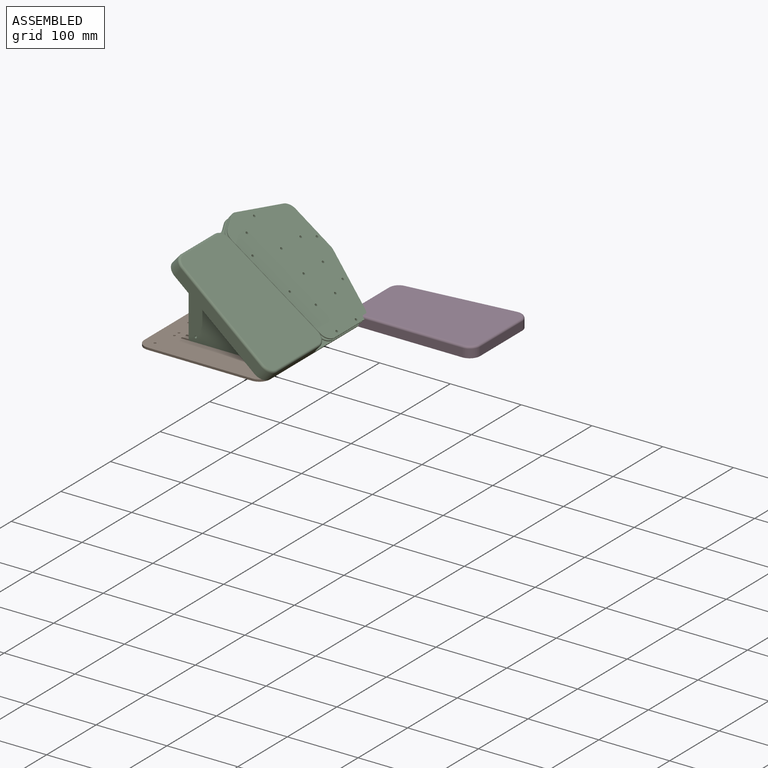
[diagram: assembled view]
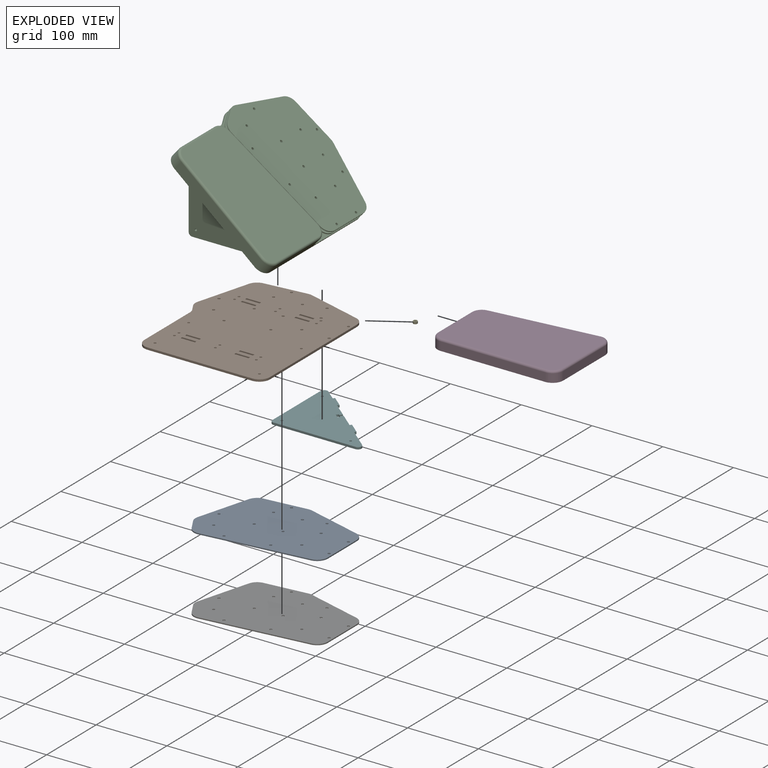
[diagram: exploded view]
FCSTD DOCUMENT  (FreeCAD 0.19R14555 (Git shallow))
Label: tented_case
License: All rights reserved
LicenseURL: http://en.wikipedia.org/wiki/All_rights_reserved
objects: App::Link×49, PartDesign::CoordinateSystem×44, Sketcher::SketchObject×15, PartDesign::Pad×6, PartDesign::Pocket×6, PartDesign::Body×6, Spreadsheet::Sheet×4, App::DocumentObjectGroup×2, PartDesign::Plane×2, App::FeaturePython×1, PartDesign::Fillet×1, App::Part×1
note: 93 computed .brp shape members not serialized (recipe doc carries the construction recipe); baked Part::Feature solids carry a one-line shape summary decoded from their .brp

FEATURE [Sketcher::SketchObject] Sketch  label="PCB Outline S"
  FullyConstrained = true
  expr: Constraints[16] = <<PCB Outline Vertices>>.B1
  expr: Constraints[8] = <<PCB Outline Vertices>>.B3
  expr: Constraints[15] = <<PCB Outline Vertices>>.A1
  expr: Constraints[13] = <<PCB Outline Vertices>>.A6
  expr: Constraints[7] = <<PCB Outline Vertices>>.A3
  expr: Constraints[6] = <<PCB Outline Vertices>>.B2
  expr: Constraints[12] = <<PCB Outline Vertices>>.B5
  expr: Constraints[5] = <<PCB Outline Vertices>>.A2
  expr: Constraints[10] = <<PCB Outline Vertices>>.B4
  expr: Constraints[11] = <<PCB Outline Vertices>>.A5
  expr: Constraints[9] = <<PCB Outline Vertices>>.A4
  expr: Constraints[14] = <<PCB Outline Vertices>>.B6
  sketch-geometry (18):
    g0: LineSegment StartX=-152 StartY=-1 StartZ=0 EndX=-172.287 EndY=-75.1 EndZ=0
    g1: LineSegment StartX=-172.287 StartY=-75.1 StartZ=0 EndX=-162.537 EndY=-91.9875 EndZ=0
    g2: LineSegment StartX=-162.537 StartY=-91.9875 StartZ=0 EndX=-15 EndY=-75.5 EndZ=0
    g3: LineSegment StartX=-15 StartY=-75.5 StartZ=0 EndX=-15 EndY=-17 EndZ=0
    g4: LineSegment StartX=-15 StartY=-17 StartZ=0 EndX=-93 EndY=5 EndZ=0
    g5: LineSegment StartX=-93 StartY=5 StartZ=0 EndX=-152 EndY=-1 EndZ=0
    g6: LineSegment StartX=-166.468 StartY=2.96101 StartZ=0 EndX=-186.755 EndY=-71.139 EndZ=0
    g7: LineSegment StartX=-153.518 StartY=13.923 StartZ=0 EndX=-94.5176 EndY=19.923 EndZ=0
    g8: LineSegment StartX=-88.9281 StartY=19.4367 StartZ=0 EndX=-10.9281 EndY=-2.56325 EndZ=0
    g9: LineSegment StartX=-8.9e-15 StartY=-17 StartZ=0 EndX=-8.9e-15 EndY=-75.5 EndZ=0
    g10: LineSegment StartX=-13.3341 StartY=-90.4072 StartZ=0 EndX=-160.872 EndY=-106.895 EndZ=0
    g11: LineSegment StartX=-185.278 StartY=-82.6 StartZ=0 EndX=-175.528 EndY=-99.4875 EndZ=0
    g12: ArcOfCircle CenterX=-152 CenterY=-1 CenterZ=0 NormalX=0 NormalY=0 NormalZ=1 AngleXU=0 Radius=15 StartAngle=1.67214 EndAngle=2.87436
    g13: ArcOfCircle CenterX=-93 CenterY=5 CenterZ=0 NormalX=0 NormalY=0 NormalZ=1 AngleXU=0 Radius=15 StartAngle=1.29589 EndAngle=1.67214
    g14: ArcOfCircle CenterX=-15 CenterY=-17 CenterZ=0 NormalX=0 NormalY=0 NormalZ=1 AngleXU=0 Radius=15 StartAngle=0 EndAngle=1.29589
    g15: ArcOfCircle CenterX=-15 CenterY=-75.5 CenterZ=0 NormalX=0 NormalY=0 NormalZ=1 AngleXU=0 Radius=15 StartAngle=4.82368 EndAngle=6.28319
    g16: ArcOfCircle CenterX=-162.537 CenterY=-91.9875 CenterZ=0 NormalX=0 NormalY=0 NormalZ=1 AngleXU=0 Radius=15 StartAngle=3.66519 EndAngle=4.82368
    g17: ArcOfCircle CenterX=-172.287 CenterY=-75.1 CenterZ=0 NormalX=0 NormalY=0 NormalZ=1 AngleXU=0 Radius=15 StartAngle=2.87436 EndAngle=3.66519
  constraints (43):
    c: Coincident(g0,g1)
    c: Coincident(g1,g2)
    c: Coincident(g2,g3)
    c: Coincident(g3,g4)
    c: Coincident(g4,g5)
    c: DistanceX(g0) = -172.287
    c: DistanceY(g0) = -75.1
    c: DistanceX(g1) = -162.537
    c: DistanceY(g1) = -91.9875
    c: DistanceX(g2) = -15
    c: DistanceY(g2) = -75.5
    c: DistanceX(g3) = -15
    c: DistanceY(g3) = -17
    c: DistanceX(g4) = -93
    c: DistanceY(g4) = 5
    c: DistanceX(g0) = -152
    c: DistanceY(g0) = -1
    c: Vertical(g9)
    c: Coincident(g12,g0)
    c: Coincident(g13,g4)
    c: Coincident(g14,g3)
    c: Coincident(g15,g2)
    c: Coincident(g16,g1)
    c: Coincident(g17,g0)
    c: Equal(g12,g13)
    c: Equal(g13,g14)
    c: Equal(g14,g15)
    c: Equal(g15,g16)
    c: Equal(g16,g17)
    c: Radius(g12) = 15  'vertex_radius'
    c: Tangent(g12,g7) = 1.5708
    c: Tangent(g12,g6) = -1.5708
    c: Tangent(g6,g17) = -1.5708
    c: Tangent(g17,g11) = -1.5708
    c: Coincident(g15,g9)
    c: Tangent(g15,g10) = 1.5708
    c: Tangent(g16,g10) = 1.5708
    c: Tangent(g13,g8) = 1.5708
    c: Tangent(g13,g7) = 1.5708
    c: Tangent(g8,g14) = 1.5708
    c: Tangent(g9,g14) = 1.5708
    c: Tangent(g16,g11) = -1.5708
    c: Coincident(g12,g5)
FEATURE [Spreadsheet::Sheet] Spreadsheet  label="PCB Outline Vertices"
  cells = A1==-152mm; B1==-1mm; A2==-172.2874953737966mm; B2==-75.09999999999999mm; A3==-162.5374953737966mm; B3==-91.98749537379655mm; A4==-15mm; B4==-75.5mm; A5==-15mm; B5==-17mm; A6==-93mm; B6==5mm
FEATURE [Spreadsheet::Sheet] Spreadsheet001  label="Mounting Hole Positions"
  cells = A1==-5mm; B1==-26.75mm; A2==-5mm; B2==-65.75mm; A3==-44.25mm; B3==-25.75mm; A4==-44.25mm; B4==-64.75mm; A5==-83.25mm; B5==-7.75mm; A6==-83.25mm; B6==-46.75mm; A7==-122.25mm; B7==-10.25mm; A8==-122.25mm; B8==-49.25mm; A9==-54mm; B9==0mm; A10==-73.5mm; B10==-85.5mm; A11==-112.5mm; B11==12mm; A12==-132.25mm; B12==-96mm; A13==-171.5mm; B13==-50mm; A14==-158.9687476868983mm; B14==-78.66874768689827mm
FEATURE [Sketcher::SketchObject] Sketch001  label="PCB Mounting Holes S"
  FullyConstrained = true
  expr: Constraints[40] = <<Mounting Hole Positions>>.A14
  expr: Constraints[39] = <<Mounting Hole Positions>>.B13
  expr: Constraints[37] = <<Mounting Hole Positions>>.B12
  expr: Constraints[35] = <<Mounting Hole Positions>>.B11
  expr: Constraints[33] = <<Mounting Hole Positions>>.B10
  expr: Constraints[20] = <<Mounting Hole Positions>>.B4
  expr: Constraints[24] = <<Mounting Hole Positions>>.B6
  expr: Constraints[27] = <<Mounting Hole Positions>>.B7
  expr: Constraints[22] = <<Mounting Hole Positions>>.B5
  expr: Constraints[41] = <<Mounting Hole Positions>>.B14
  expr: Constraints[28] = <<Mounting Hole Positions>>.A8
  expr: Constraints[21] = <<Mounting Hole Positions>>.A5
  expr: Constraints[31] = <<Mounting Hole Positions>>.B9
  expr: Constraints[30] = <<Mounting Hole Positions>>.A9
  expr: Constraints[19] = <<Mounting Hole Positions>>.A4
  expr: Constraints[23] = <<Mounting Hole Positions>>.A6
  expr: Constraints[29] = <<Mounting Hole Positions>>.B8
  expr: Constraints[4] = <<Mounting Hole Positions>>.A3
  expr: Constraints[38] = <<Mounting Hole Positions>>.A13
  expr: Constraints[26] = <<Mounting Hole Positions>>.A7
  expr: Constraints[3] = <<Mounting Hole Positions>>.B2
  expr: Constraints[32] = <<Mounting Hole Positions>>.A10
  expr: Constraints[5] = <<Mounting Hole Positions>>.B3
  expr: Constraints[2] = <<Mounting Hole Positions>>.A2
  expr: Constraints[1] = <<Mounting Hole Positions>>.B1
  expr: Constraints[0] = <<Mounting Hole Positions>>.A1
  expr: Constraints[34] = <<Mounting Hole Positions>>.A11
  expr: Constraints[36] = <<Mounting Hole Positions>>.A12
  sketch-geometry (14):
    g0: Circle CenterX=-5 CenterY=-26.75 CenterZ=0 NormalX=0 NormalY=0 NormalZ=1 AngleXU=0 Radius=1.75
    g1: Circle CenterX=-5 CenterY=-65.75 CenterZ=0 NormalX=0 NormalY=0 NormalZ=1 AngleXU=0 Radius=1.75
    g2: Circle CenterX=-44.25 CenterY=-25.75 CenterZ=0 NormalX=0 NormalY=0 NormalZ=1 AngleXU=0 Radius=1.75
    g3: Circle CenterX=-44.25 CenterY=-64.75 CenterZ=0 NormalX=0 NormalY=0 NormalZ=1 AngleXU=0 Radius=1.75
    g4: Circle CenterX=-54 CenterY=0 CenterZ=0 NormalX=0 NormalY=0 NormalZ=1 AngleXU=0 Radius=1.75
    g5: Circle CenterX=-83.25 CenterY=-7.75 CenterZ=0 NormalX=0 NormalY=0 NormalZ=1 AngleXU=0 Radius=1.75
    g6: Circle CenterX=-158.969 CenterY=-78.6687 CenterZ=0 NormalX=0 NormalY=0 NormalZ=1 AngleXU=0 Radius=1.75
    g7: Circle CenterX=-73.5 CenterY=-85.5 CenterZ=0 NormalX=0 NormalY=0 NormalZ=1 AngleXU=0 Radius=1.75
    g8: Circle CenterX=-132.25 CenterY=-96 CenterZ=0 NormalX=0 NormalY=0 NormalZ=1 AngleXU=0 Radius=1.75
    g9: Circle CenterX=-171.5 CenterY=-50 CenterZ=0 NormalX=0 NormalY=0 NormalZ=1 AngleXU=0 Radius=1.75
    g10: Circle CenterX=-112.5 CenterY=12 CenterZ=0 NormalX=0 NormalY=0 NormalZ=1 AngleXU=0 Radius=1.75
    g11: Circle CenterX=-122.25 CenterY=-49.25 CenterZ=0 NormalX=0 NormalY=0 NormalZ=1 AngleXU=0 Radius=1.75
    g12: Circle CenterX=-122.25 CenterY=-10.25 CenterZ=0 NormalX=0 NormalY=0 NormalZ=1 AngleXU=0 Radius=1.75
    g13: Circle CenterX=-83.25 CenterY=-46.75 CenterZ=0 NormalX=0 NormalY=0 NormalZ=1 AngleXU=0 Radius=1.75
  constraints (42):
    c: DistanceX(g0) = -5
    c: DistanceY(g0) = -26.75
    c: DistanceX(g1) = -5
    c: DistanceY(g1) = -65.75
    c: DistanceX(g2) = -44.25
    c: DistanceY(g2) = -25.75
    c: Equal(g0,g1)
    c: Equal(g1,g2)
    c: Equal(g2,g3)
    c: Equal(g3,g4)
    c: Equal(g4,g5)
    c: Equal(g5,g6)
    c: Equal(g6,g7)
    c: Equal(g7,g8)
    c: Equal(g8,g9)
    c: Equal(g9,g10)
    c: Equal(g10,g11)
    c: Equal(g11,g12)
    c: Equal(g12,g13)
    c: DistanceX(g3) = -44.25
    c: DistanceY(g3) = -64.75
    c: DistanceX(g5) = -83.25
    c: DistanceY(g5) = -7.75
    c: DistanceX(g13) = -83.25
    c: DistanceY(g13) = -46.75
    c: Diameter(g1) = 3.5  'hole_diameter'
    c: DistanceX(g12) = -122.25
    c: DistanceY(g12) = -10.25
    c: DistanceX(g11) = -122.25
    c: DistanceY(g11) = -49.25
    c: DistanceX(g4) = -54
    c: DistanceY(g4) = 0
    c: DistanceX(g7) = -73.5
    c: DistanceY(g7) = -85.5
    c: DistanceX(g10) = -112.5
    c: DistanceY(g10) = 12
    c: DistanceX(g8) = -132.25
    c: DistanceY(g8) = -96
    c: DistanceX(g9) = -171.5
    c: DistanceY(g9) = -50
    c: DistanceX(g6) = -158.969
    c: DistanceY(g6) = -78.6687
FEATURE [Spreadsheet::Sheet] Spreadsheet002  label="Parameters"
  cells = A1=Tent Angle; B1(tent_angle)=40; A2=Palm Rest Short Height; B2(palm_rest_short_height)==100mm
FEATURE [Spreadsheet::Sheet] Spreadsheet003  label="Palm Rest Outer Vertices"
  cells = A1==<<PCB Outline Vertices>>.A3 + A6; B1==<<PCB Outline Vertices>>.B3; A2==<<PCB Outline Vertices>>.A4 - A6; B2==<<PCB Outline Vertices>>.B4; A3==<<PCB Outline Vertices>>.A3 + A6 + 30mm; B3==-180mm; A4==<<PCB Outline Vertices>>.A4 - A6 - 20mm; B4==-180mm; A6==10mm
FEATURE [Sketcher::SketchObject] Sketch010  label="Palm Rest Outer S"
  FullyConstrained = true
  expr: Constraints[0] = <<Palm Rest Outer Vertices>>.A3
  expr: Constraints[9] = <<Palm Rest Outer Vertices>>.A1
  expr: Constraints[3] = <<Palm Rest Outer Vertices>>.B4
  expr: Constraints[11] = <<Palm Rest Outer Vertices>>.A2
  expr: Constraints[2] = <<Palm Rest Outer Vertices>>.A4
  expr: Constraints[10] = <<Palm Rest Outer Vertices>>.B1
  expr: Constraints[1] = <<Palm Rest Outer Vertices>>.B3
  expr: Constraints[12] = <<Palm Rest Outer Vertices>>.B2
  sketch-geometry (8):
    g0: ArcOfCircle CenterX=-122.537 CenterY=-180 CenterZ=0 NormalX=0 NormalY=0 NormalZ=1 AngleXU=0 Radius=15 StartAngle=3.4701 EndAngle=4.71239
    g1: ArcOfCircle CenterX=-45 CenterY=-180 CenterZ=0 NormalX=0 NormalY=0 NormalZ=1 AngleXU=0 Radius=15 StartAngle=4.71239 EndAngle=6.09408
    g2: LineSegment StartX=-166.735 StartY=-96.827 StartZ=0 EndX=-136.735 EndY=-184.839 EndZ=0
    g3: LineSegment StartX=-10.2674 StartY=-78.3196 StartZ=0 EndX=-30.2674 EndY=-182.82 EndZ=0
    g4: LineSegment StartX=-45 StartY=-195 StartZ=0 EndX=-122.537 EndY=-195 EndZ=0
    g5: ArcOfCircle CenterX=-152.537 CenterY=-91.9875 CenterZ=0 NormalX=0 NormalY=0 NormalZ=1 AngleXU=0 Radius=15 StartAngle=1.69936 EndAngle=3.4701
    g6: ArcOfCircle CenterX=-25 CenterY=-75.5 CenterZ=0 NormalX=0 NormalY=0 NormalZ=1 AngleXU=0 Radius=15 StartAngle=6.09408 EndAngle=7.98254
    g7: LineSegment StartX=-154.461 StartY=-77.1113 StartZ=0 EndX=-26.9231 EndY=-60.6238 EndZ=0
  constraints (20):
    c: DistanceX(g0) = -122.537
    c: DistanceY(g0) = -180
    c: DistanceX(g1) = -45
    c: DistanceY(g1) = -180
    c: Radius(g0) = 15
    c: Tangent(g0,g2) = -1.5708
    c: Tangent(g0,g4) = 1.5708
    c: Tangent(g1,g4) = 1.5708
    c: Tangent(g1,g3) = 1.5708
    c: DistanceX(g5) = -152.537
    c: DistanceY(g5) = -91.9875
    c: DistanceX(g6) = -25
    c: DistanceY(g6) = -75.5
    c: Tangent(g5,g7) = 1.5708
    c: Tangent(g5,g2) = -1.5708
    c: Tangent(g6,g3) = 1.5708
    c: Tangent(g6,g7) = 1.5708
    c: Equal(g0,g1)
    c: Equal(g1,g5)
    c: Equal(g5,g6)
FEATURE [PartDesign::CoordinateSystem] LCS_Origin
  AttacherType = Attacher::AttachEngine3D
  MapMode = 2
  Support = -> [X_Axis]
FEATURE [App::DocumentObjectGroup] Constraints
FEATURE [App::FeaturePython] Variables  # WARN: FeaturePython — macro-defined, semantics opaque (R4)
FEATURE [Sketcher::SketchObject] Sketch011
  FullyConstrained = true
  MapMode = 5
  Support = -> [XY_Plane001]
  expr: Constraints[15] = Sketch.Constraints[15]
  expr: Constraints[12] = Sketch.Constraints[12]
  expr: Constraints[11] = Sketch.Constraints[11]
  expr: Constraints[14] = Sketch.Constraints[14]
  expr: Constraints[9] = Sketch.Constraints[9]
  expr: Constraints[16] = Sketch.Constraints[16]
  expr: Constraints[8] = Sketch.Constraints[8]
  expr: Constraints[13] = Sketch.Constraints[13]
  expr: Constraints[7] = Sketch.Constraints[7]
  expr: .Constraints.vertex_radius = Sketch.Constraints[29]
  expr: Constraints[6] = Sketch.Constraints[6]
  expr: Constraints[10] = Sketch.Constraints[10]
  expr: Constraints[5] = Sketch.Constraints[5]
  sketch-geometry (18):
    g0: LineSegment StartX=-152 StartY=-1 StartZ=0 EndX=-172.287 EndY=-75.1 EndZ=0
    g1: LineSegment StartX=-172.287 StartY=-75.1 StartZ=0 EndX=-162.537 EndY=-91.9875 EndZ=0
    g2: LineSegment StartX=-162.537 StartY=-91.9875 StartZ=0 EndX=-15 EndY=-75.5 EndZ=0
    g3: LineSegment StartX=-15 StartY=-75.5 StartZ=0 EndX=-15 EndY=-17 EndZ=0
    g4: LineSegment StartX=-15 StartY=-17 StartZ=0 EndX=-93 EndY=5 EndZ=0
    g5: LineSegment StartX=-93 StartY=5 StartZ=0 EndX=-152 EndY=-1 EndZ=0
    g6: LineSegment StartX=-166.468 StartY=2.96101 StartZ=0 EndX=-186.755 EndY=-71.139 EndZ=0
    g7: LineSegment StartX=-153.518 StartY=13.923 StartZ=0 EndX=-94.5176 EndY=19.923 EndZ=0
    g8: LineSegment StartX=-88.9281 StartY=19.4367 StartZ=0 EndX=-10.9281 EndY=-2.56325 EndZ=0
    g9: LineSegment StartX=-8.9e-15 StartY=-17 StartZ=0 EndX=-8.9e-15 EndY=-75.5 EndZ=0
    g10: LineSegment StartX=-13.3341 StartY=-90.4072 StartZ=0 EndX=-160.872 EndY=-106.895 EndZ=0
    g11: LineSegment StartX=-185.278 StartY=-82.6 StartZ=0 EndX=-175.528 EndY=-99.4875 EndZ=0
    g12: ArcOfCircle CenterX=-152 CenterY=-1 CenterZ=0 NormalX=0 NormalY=0 NormalZ=1 AngleXU=0 Radius=15 StartAngle=1.67214 EndAngle=2.87436
    g13: ArcOfCircle CenterX=-93 CenterY=5 CenterZ=0 NormalX=0 NormalY=0 NormalZ=1 AngleXU=0 Radius=15 StartAngle=1.29589 EndAngle=1.67214
    g14: ArcOfCircle CenterX=-15 CenterY=-17 CenterZ=0 NormalX=0 NormalY=0 NormalZ=1 AngleXU=0 Radius=15 StartAngle=0 EndAngle=1.29589
    g15: ArcOfCircle CenterX=-15 CenterY=-75.5 CenterZ=0 NormalX=0 NormalY=0 NormalZ=1 AngleXU=0 Radius=15 StartAngle=4.82368 EndAngle=6.28319
    g16: ArcOfCircle CenterX=-162.537 CenterY=-91.9875 CenterZ=0 NormalX=0 NormalY=0 NormalZ=1 AngleXU=0 Radius=15 StartAngle=3.66519 EndAngle=4.82368
    g17: ArcOfCircle CenterX=-172.287 CenterY=-75.1 CenterZ=0 NormalX=0 NormalY=0 NormalZ=1 AngleXU=0 Radius=15 StartAngle=2.87436 EndAngle=3.66519
  constraints (43):
    c: Coincident(g0,g1)
    c: Coincident(g1,g2)
    c: Coincident(g2,g3)
    c: Coincident(g3,g4)
    c: Coincident(g4,g5)
    c: DistanceX(g0) = -172.287
    c: DistanceY(g0) = -75.1
    c: DistanceX(g1) = -162.537
    c: DistanceY(g1) = -91.9875
    c: DistanceX(g2) = -15
    c: DistanceY(g2) = -75.5
    c: DistanceX(g3) = -15
    c: DistanceY(g3) = -17
    c: DistanceX(g4) = -93
    c: DistanceY(g4) = 5
    c: DistanceX(g0) = -152
    c: DistanceY(g0) = -1
    c: Vertical(g9)
    c: Coincident(g12,g0)
    c: Coincident(g13,g4)
    c: Coincident(g14,g3)
    c: Coincident(g15,g2)
    c: Coincident(g16,g1)
    c: Coincident(g17,g0)
    c: Equal(g12,g13)
    c: Equal(g13,g14)
    c: Equal(g14,g15)
    c: Equal(g15,g16)
    c: Equal(g16,g17)
    c: Radius(g12) = 15  'vertex_radius'
    c: Tangent(g12,g7) = 1.5708
    c: Tangent(g12,g6) = -1.5708
    c: Tangent(g6,g17) = -1.5708
    c: Tangent(g17,g11) = -1.5708
    c: Coincident(g15,g9)
    c: Tangent(g15,g10) = 1.5708
    c: Tangent(g16,g10) = 1.5708
    c: Tangent(g13,g8) = 1.5708
    c: Tangent(g13,g7) = 1.5708
    c: Tangent(g8,g14) = 1.5708
    c: Tangent(g9,g14) = 1.5708
    c: Tangent(g16,g11) = -1.5708
    c: Coincident(g12,g5)
FEATURE [PartDesign::Pad] Pad
  Direction = (1,1,1)
  Length = 1.6
  Length2 = 100
  Profile = -> Sketch011
  Type = 0
FEATURE [Sketcher::SketchObject] Sketch012
  FullyConstrained = true
  MapMode = 5
  Support = -> [XY_Plane001]
  expr: Constraints[40] = Sketch001.Constraints[40]
  expr: Constraints[39] = Sketch001.Constraints[39]
  expr: Constraints[37] = Sketch001.Constraints[37]
  expr: Constraints[35] = Sketch001.Constraints[35]
  expr: Constraints[33] = Sketch001.Constraints[33]
  expr: Constraints[20] = Sketch001.Constraints[20]
  expr: Constraints[24] = Sketch001.Constraints[24]
  expr: Constraints[27] = Sketch001.Constraints[27]
  expr: Constraints[22] = Sketch001.Constraints[22]
  expr: Constraints[41] = Sketch001.Constraints[41]
  expr: Constraints[28] = Sketch001.Constraints[28]
  expr: Constraints[21] = Sketch001.Constraints[21]
  expr: Constraints[30] = Sketch001.Constraints[30]
  expr: Constraints[31] = Sketch001.Constraints[31]
  expr: Constraints[19] = Sketch001.Constraints[19]
  expr: Constraints[23] = Sketch001.Constraints[23]
  expr: Constraints[26] = Sketch001.Constraints[26]
  expr: Constraints[3] = Sketch001.Constraints[3]
  expr: Constraints[32] = Sketch001.Constraints[32]
  expr: Constraints[4] = Sketch001.Constraints[4]
  expr: Constraints[29] = Sketch001.Constraints[29]
  expr: Constraints[38] = Sketch001.Constraints[38]
  expr: Constraints[5] = Sketch001.Constraints[5]
  expr: Constraints[2] = Sketch001.Constraints[2]
  expr: Constraints[1] = Sketch001.Constraints[1]
  expr: .Constraints.hole_diameter = Sketch001.Constraints[25]
  expr: Constraints[0] = Sketch001.Constraints[0]
  expr: Constraints[34] = Sketch001.Constraints[34]
  expr: Constraints[36] = Sketch001.Constraints[36]
  sketch-geometry (14):
    g0: Circle CenterX=-5 CenterY=-26.75 CenterZ=0 NormalX=0 NormalY=0 NormalZ=1 AngleXU=0 Radius=1.75
    g1: Circle CenterX=-5 CenterY=-65.75 CenterZ=0 NormalX=0 NormalY=0 NormalZ=1 AngleXU=0 Radius=1.75
    g2: Circle CenterX=-44.25 CenterY=-25.75 CenterZ=0 NormalX=0 NormalY=0 NormalZ=1 AngleXU=0 Radius=1.75
    g3: Circle CenterX=-44.25 CenterY=-64.75 CenterZ=0 NormalX=0 NormalY=0 NormalZ=1 AngleXU=0 Radius=1.75
    g4: Circle CenterX=-54 CenterY=0 CenterZ=0 NormalX=0 NormalY=0 NormalZ=1 AngleXU=0 Radius=1.75
    g5: Circle CenterX=-83.25 CenterY=-7.75 CenterZ=0 NormalX=0 NormalY=0 NormalZ=1 AngleXU=0 Radius=1.75
    g6: Circle CenterX=-158.969 CenterY=-78.6687 CenterZ=0 NormalX=0 NormalY=0 NormalZ=1 AngleXU=0 Radius=1.75
    g7: Circle CenterX=-73.5 CenterY=-85.5 CenterZ=0 NormalX=0 NormalY=0 NormalZ=1 AngleXU=0 Radius=1.75
    g8: Circle CenterX=-132.25 CenterY=-96 CenterZ=0 NormalX=0 NormalY=0 NormalZ=1 AngleXU=0 Radius=1.75
    g9: Circle CenterX=-171.5 CenterY=-50 CenterZ=0 NormalX=0 NormalY=0 NormalZ=1 AngleXU=0 Radius=1.75
    g10: Circle CenterX=-112.5 CenterY=12 CenterZ=0 NormalX=0 NormalY=0 NormalZ=1 AngleXU=0 Radius=1.75
    g11: Circle CenterX=-122.25 CenterY=-49.25 CenterZ=0 NormalX=0 NormalY=0 NormalZ=1 AngleXU=0 Radius=1.75
    g12: Circle CenterX=-122.25 CenterY=-10.25 CenterZ=0 NormalX=0 NormalY=0 NormalZ=1 AngleXU=0 Radius=1.75
    g13: Circle CenterX=-83.25 CenterY=-46.75 CenterZ=0 NormalX=0 NormalY=0 NormalZ=1 AngleXU=0 Radius=1.75
  constraints (42):
    c: DistanceX(g0) = -5
    c: DistanceY(g0) = -26.75
    c: DistanceX(g1) = -5
    c: DistanceY(g1) = -65.75
    c: DistanceX(g2) = -44.25
    c: DistanceY(g2) = -25.75
    c: Equal(g0,g1)
    c: Equal(g1,g2)
    c: Equal(g2,g3)
    c: Equal(g3,g4)
    c: Equal(g4,g5)
    c: Equal(g5,g6)
    c: Equal(g6,g7)
    c: Equal(g7,g8)
    c: Equal(g8,g9)
    c: Equal(g9,g10)
    c: Equal(g10,g11)
    c: Equal(g11,g12)
    c: Equal(g12,g13)
    c: DistanceX(g3) = -44.25
    c: DistanceY(g3) = -64.75
    c: DistanceX(g5) = -83.25
    c: DistanceY(g5) = -7.75
    c: DistanceX(g13) = -83.25
    c: DistanceY(g13) = -46.75
    c: Diameter(g1) = 3.5  'hole_diameter'
    c: DistanceX(g12) = -122.25
    c: DistanceY(g12) = -10.25
    c: DistanceX(g11) = -122.25
    c: DistanceY(g11) = -49.25
    c: DistanceX(g4) = -54
    c: DistanceY(g4) = 0
    c: DistanceX(g7) = -73.5
    c: DistanceY(g7) = -85.5
    c: DistanceX(g10) = -112.5
    c: DistanceY(g10) = 12
    c: DistanceX(g8) = -132.25
    c: DistanceY(g8) = -96
    c: DistanceX(g9) = -171.5
    c: DistanceY(g9) = -50
    c: DistanceX(g6) = -158.969
    c: DistanceY(g6) = -78.6687
FEATURE [PartDesign::Pocket] Pocket
  BaseFeature = -> Pad
  Length = 5
  Length2 = 100
  Profile = -> Sketch012
  Reversed = true
  Type = 1
FEATURE [Sketcher::SketchObject] Sketch013
  FullyConstrained = true
  MapMode = 5
  Support = -> [XY_Plane002]
  expr: Constraints[5] = Sketch.Constraints[5]
  expr: Constraints[10] = Sketch.Constraints[10]
  expr: Constraints[6] = Sketch.Constraints[6]
  expr: .Constraints.vertex_radius = Sketch.Constraints[29]
  expr: Constraints[7] = Sketch.Constraints[7]
  expr: Constraints[13] = Sketch.Constraints[13]
  expr: Constraints[8] = Sketch.Constraints[8]
  expr: Constraints[16] = Sketch.Constraints[16]
  expr: Constraints[9] = Sketch.Constraints[9]
  expr: Constraints[14] = Sketch.Constraints[14]
  expr: Constraints[11] = Sketch.Constraints[11]
  expr: Constraints[12] = Sketch.Constraints[12]
  expr: Constraints[15] = Sketch.Constraints[15]
  sketch-geometry (18):
    g0: LineSegment StartX=-152 StartY=-1 StartZ=0 EndX=-172.287 EndY=-75.1 EndZ=0
    g1: LineSegment StartX=-172.287 StartY=-75.1 StartZ=0 EndX=-162.537 EndY=-91.9875 EndZ=0
    g2: LineSegment StartX=-162.537 StartY=-91.9875 StartZ=0 EndX=-15 EndY=-75.5 EndZ=0
    g3: LineSegment StartX=-15 StartY=-75.5 StartZ=0 EndX=-15 EndY=-17 EndZ=0
    g4: LineSegment StartX=-15 StartY=-17 StartZ=0 EndX=-93 EndY=5 EndZ=0
    g5: LineSegment StartX=-93 StartY=5 StartZ=0 EndX=-152 EndY=-1 EndZ=0
    g6: LineSegment StartX=-166.468 StartY=2.96101 StartZ=0 EndX=-186.755 EndY=-71.139 EndZ=0
    g7: LineSegment StartX=-153.518 StartY=13.923 StartZ=0 EndX=-94.5176 EndY=19.923 EndZ=0
    g8: LineSegment StartX=-88.9281 StartY=19.4367 StartZ=0 EndX=-10.9281 EndY=-2.56325 EndZ=0
    g9: LineSegment StartX=0 StartY=-17 StartZ=0 EndX=0 EndY=-75.5 EndZ=0
    g10: LineSegment StartX=-13.3341 StartY=-90.4072 StartZ=0 EndX=-160.872 EndY=-106.895 EndZ=0
    g11: LineSegment StartX=-185.278 StartY=-82.6 StartZ=0 EndX=-175.528 EndY=-99.4875 EndZ=0
    g12: ArcOfCircle CenterX=-152 CenterY=-1 CenterZ=0 NormalX=0 NormalY=0 NormalZ=1 AngleXU=0 Radius=15 StartAngle=1.67214 EndAngle=2.87436
    g13: ArcOfCircle CenterX=-93 CenterY=5 CenterZ=0 NormalX=0 NormalY=0 NormalZ=1 AngleXU=0 Radius=15 StartAngle=1.29589 EndAngle=1.67214
    g14: ArcOfCircle CenterX=-15 CenterY=-17 CenterZ=0 NormalX=0 NormalY=0 NormalZ=1 AngleXU=0 Radius=15 StartAngle=0 EndAngle=1.29589
    g15: ArcOfCircle CenterX=-15 CenterY=-75.5 CenterZ=0 NormalX=0 NormalY=0 NormalZ=1 AngleXU=0 Radius=15 StartAngle=4.82368 EndAngle=6.28319
    g16: ArcOfCircle CenterX=-162.537 CenterY=-91.9875 CenterZ=0 NormalX=0 NormalY=0 NormalZ=1 AngleXU=0 Radius=15 StartAngle=3.66519 EndAngle=4.82368
    g17: ArcOfCircle CenterX=-172.287 CenterY=-75.1 CenterZ=0 NormalX=0 NormalY=0 NormalZ=1 AngleXU=0 Radius=15 StartAngle=2.87436 EndAngle=3.66519
  constraints (43):
    c: Coincident(g0,g1)
    c: Coincident(g1,g2)
    c: Coincident(g2,g3)
    c: Coincident(g3,g4)
    c: Coincident(g4,g5)
    c: DistanceX(g0) = -172.287
    c: DistanceY(g0) = -75.1
    c: DistanceX(g1) = -162.537
    c: DistanceY(g1) = -91.9875
    c: DistanceX(g2) = -15
    c: DistanceY(g2) = -75.5
    c: DistanceX(g3) = -15
    c: DistanceY(g3) = -17
    c: DistanceX(g4) = -93
    c: DistanceY(g4) = 5
    c: DistanceX(g0) = -152
    c: DistanceY(g0) = -1
    c: Vertical(g9)
    c: Coincident(g12,g0)
    c: Coincident(g13,g4)
    c: Coincident(g14,g3)
    c: Coincident(g15,g2)
    c: Coincident(g16,g1)
    c: Coincident(g17,g0)
    c: Equal(g12,g13)
    c: Equal(g13,g14)
    c: Equal(g14,g15)
    c: Equal(g15,g16)
    c: Equal(g16,g17)
    c: Radius(g12) = 15  'vertex_radius'
    c: Tangent(g12,g7) = 1.5708
    c: Tangent(g12,g6) = -1.5708
    c: Tangent(g6,g17) = -1.5708
    c: Tangent(g17,g11) = -1.5708
    c: Coincident(g15,g9)
    c: Tangent(g15,g10) = 1.5708
    c: Tangent(g16,g10) = 1.5708
    c: Tangent(g13,g8) = 1.5708
    c: Tangent(g13,g7) = 1.5708
    c: Tangent(g8,g14) = 1.5708
    c: Tangent(g9,g14) = 1.5708
    c: Tangent(g16,g11) = -1.5708
    c: Coincident(g12,g5)
FEATURE [PartDesign::Pad] Pad001
  Direction = (1,1,1)
  Length = 1.5
  Length2 = 100
  Profile = -> Sketch013
  Type = 0
FEATURE [Sketcher::SketchObject] Sketch014
  FullyConstrained = true
  MapMode = 5
  Support = -> [XY_Plane002]
  expr: .Constraints.hole_diameter = Sketch001.Constraints[25]
  expr: Constraints[0] = Sketch001.Constraints[0]
  expr: Constraints[34] = Sketch001.Constraints[34]
  expr: Constraints[36] = Sketch001.Constraints[36]
  expr: Constraints[1] = Sketch001.Constraints[1]
  expr: Constraints[5] = Sketch001.Constraints[5]
  expr: Constraints[2] = Sketch001.Constraints[2]
  expr: Constraints[4] = Sketch001.Constraints[4]
  expr: Constraints[29] = Sketch001.Constraints[29]
  expr: Constraints[38] = Sketch001.Constraints[38]
  expr: Constraints[26] = Sketch001.Constraints[26]
  expr: Constraints[3] = Sketch001.Constraints[3]
  expr: Constraints[32] = Sketch001.Constraints[32]
  expr: Constraints[19] = Sketch001.Constraints[19]
  expr: Constraints[23] = Sketch001.Constraints[23]
  expr: Constraints[31] = Sketch001.Constraints[31]
  expr: Constraints[30] = Sketch001.Constraints[30]
  expr: Constraints[21] = Sketch001.Constraints[21]
  expr: Constraints[28] = Sketch001.Constraints[28]
  expr: Constraints[41] = Sketch001.Constraints[41]
  expr: Constraints[22] = Sketch001.Constraints[22]
  expr: Constraints[27] = Sketch001.Constraints[27]
  expr: Constraints[24] = Sketch001.Constraints[24]
  expr: Constraints[20] = Sketch001.Constraints[20]
  expr: Constraints[33] = Sketch001.Constraints[33]
  expr: Constraints[35] = Sketch001.Constraints[35]
  expr: Constraints[37] = Sketch001.Constraints[37]
  expr: Constraints[39] = Sketch001.Constraints[39]
  expr: Constraints[40] = Sketch001.Constraints[40]
  sketch-geometry (14):
    g0: Circle CenterX=-5 CenterY=-26.75 CenterZ=0 NormalX=0 NormalY=0 NormalZ=1 AngleXU=0 Radius=1.75
    g1: Circle CenterX=-5 CenterY=-65.75 CenterZ=0 NormalX=0 NormalY=0 NormalZ=1 AngleXU=0 Radius=1.75
    g2: Circle CenterX=-44.25 CenterY=-25.75 CenterZ=0 NormalX=0 NormalY=0 NormalZ=1 AngleXU=0 Radius=1.75
    g3: Circle CenterX=-44.25 CenterY=-64.75 CenterZ=0 NormalX=0 NormalY=0 NormalZ=1 AngleXU=0 Radius=1.75
    g4: Circle CenterX=-54 CenterY=0 CenterZ=0 NormalX=0 NormalY=0 NormalZ=1 AngleXU=0 Radius=1.75
    g5: Circle CenterX=-83.25 CenterY=-7.75 CenterZ=0 NormalX=0 NormalY=0 NormalZ=1 AngleXU=0 Radius=1.75
    g6: Circle CenterX=-158.969 CenterY=-78.6687 CenterZ=0 NormalX=0 NormalY=0 NormalZ=1 AngleXU=0 Radius=1.75
    g7: Circle CenterX=-73.5 CenterY=-85.5 CenterZ=0 NormalX=0 NormalY=0 NormalZ=1 AngleXU=0 Radius=1.75
    g8: Circle CenterX=-132.25 CenterY=-96 CenterZ=0 NormalX=0 NormalY=0 NormalZ=1 AngleXU=0 Radius=1.75
    g9: Circle CenterX=-171.5 CenterY=-50 CenterZ=0 NormalX=0 NormalY=0 NormalZ=1 AngleXU=0 Radius=1.75
    g10: Circle CenterX=-112.5 CenterY=12 CenterZ=0 NormalX=0 NormalY=0 NormalZ=1 AngleXU=0 Radius=1.75
    g11: Circle CenterX=-122.25 CenterY=-49.25 CenterZ=0 NormalX=0 NormalY=0 NormalZ=1 AngleXU=0 Radius=1.75
    g12: Circle CenterX=-122.25 CenterY=-10.25 CenterZ=0 NormalX=0 NormalY=0 NormalZ=1 AngleXU=0 Radius=1.75
    g13: Circle CenterX=-83.25 CenterY=-46.75 CenterZ=0 NormalX=0 NormalY=0 NormalZ=1 AngleXU=0 Radius=1.75
  constraints (42):
    c: DistanceX(g0) = -5
    c: DistanceY(g0) = -26.75
    c: DistanceX(g1) = -5
    c: DistanceY(g1) = -65.75
    c: DistanceX(g2) = -44.25
    c: DistanceY(g2) = -25.75
    c: Equal(g0,g1)
    c: Equal(g1,g2)
    c: Equal(g2,g3)
    c: Equal(g3,g4)
    c: Equal(g4,g5)
    c: Equal(g5,g6)
    c: Equal(g6,g7)
    c: Equal(g7,g8)
    c: Equal(g8,g9)
    c: Equal(g9,g10)
    c: Equal(g10,g11)
    c: Equal(g11,g12)
    c: Equal(g12,g13)
    c: DistanceX(g3) = -44.25
    c: DistanceY(g3) = -64.75
    c: DistanceX(g5) = -83.25
    c: DistanceY(g5) = -7.75
    c: DistanceX(g13) = -83.25
    c: DistanceY(g13) = -46.75
    c: Diameter(g1) = 3.5  'hole_diameter'
    c: DistanceX(g12) = -122.25
    c: DistanceY(g12) = -10.25
    c: DistanceX(g11) = -122.25
    c: DistanceY(g11) = -49.25
    c: DistanceX(g4) = -54
    c: DistanceY(g4) = 0
    c: DistanceX(g7) = -73.5
    c: DistanceY(g7) = -85.5
    c: DistanceX(g10) = -112.5
    c: DistanceY(g10) = 12
    c: DistanceX(g8) = -132.25
    c: DistanceY(g8) = -96
    c: DistanceX(g9) = -171.5
    c: DistanceY(g9) = -50
    c: DistanceX(g6) = -158.969
    c: DistanceY(g6) = -78.6687
FEATURE [PartDesign::Pocket] Pocket001
  BaseFeature = -> Pad001
  Length = 5
  Length2 = 100
  Profile = -> Sketch014
  Reversed = true
  Type = 1
FEATURE [PartDesign::CoordinateSystem] LCS_0002  label="Spacer_3mm_Bottom"
  AttacherType = Attacher::AttachEngine3D
  MapMode = 2
  Support = -> [X_Axis003]
FEATURE [Sketcher::SketchObject] Sketch015
  FullyConstrained = true
  MapMode = 5
  Support = -> [XY_Plane003]
  sketch-geometry (2):
    g0: Circle CenterX=0 CenterY=0 CenterZ=0 NormalX=0 NormalY=0 NormalZ=1 AngleXU=0 Radius=3
    g1: Circle CenterX=0 CenterY=0 CenterZ=0 NormalX=0 NormalY=0 NormalZ=1 AngleXU=0 Radius=1.55
  constraints (4):
    c: Coincident(g-1,g1)
    c: Coincident(g-1,g0)
    c: Diameter(g1) = 3.1
    c: Diameter(g0) = 6
FEATURE [PartDesign::Plane] DatumPlane  label="Spacer_3mm_Height"
  AttachmentOffset = pos=(0,0,3) rot=(0,0,1;0rad)
  Length = 60
  MapMode = 2
  Placement = pos=(0,0,3) rot=(0,0,1;0rad)
  ResizeMode = 0
  Support = -> [XY_Plane003]
  Width = 60
FEATURE [PartDesign::Pad] Pad002
  Direction = (1,1,1)
  Length = 3
  Length2 = 100
  Profile = -> Sketch015
  Type = 3
  UpToFace = -> DatumPlane [Plane]
FEATURE [PartDesign::CoordinateSystem] Local_CS  label="Spacer_3mm_Top"
  AttacherType = Attacher::AttachEngine3D
  MapMode = 5
  Placement = pos=(0,0,3) rot=(0,0,1;0rad)
  Support = -> [DatumPlane]
FEATURE [PartDesign::Body] Spacer_3mm
  Group = -> [DatumPlane,Sketch015,Pad002,LCS_0002,Local_CS]
  Origin = -> Origin003
  Tip = -> Pad002
FEATURE [PartDesign::CoordinateSystem] Local_CS001  label="PCB_MountingHole_Top_06"
  AttacherType = Attacher::AttachEngine3D
  MapMode = 45
  Placement = pos=(-112.5,12,1.6) rot=(0,0,-1;1.5e-05rad)
  Support = -> [Pocket]
FEATURE [PartDesign::CoordinateSystem] Local_CS002  label="PCB_MountingHole_Top_01"
  AttacherType = Attacher::AttachEngine3D
  MapMode = 45
  Placement = pos=(-171.5,-50,1.6) rot=(0,0,1;0.000245rad)
  Support = -> [Pocket]
FEATURE [PartDesign::CoordinateSystem] Local_CS003  label="PCB_MountingHole_Top_02"
  AttacherType = Attacher::AttachEngine3D
  MapMode = 45
  Placement = pos=(-158.969,-78.6687,1.6) rot=(0,0,1;0.000736rad)
  Support = -> [Pocket]
FEATURE [PartDesign::CoordinateSystem] Local_CS004  label="PCB_MountingHole_Top_03"
  AttacherType = Attacher::AttachEngine3D
  MapMode = 45
  Placement = pos=(-132.25,-96,1.6) rot=(0,0,-1;0.000246rad)
  Support = -> [Pocket]
FEATURE [PartDesign::CoordinateSystem] Local_CS005  label="PCB_MountingHole_Top_05"
  AttacherType = Attacher::AttachEngine3D
  MapMode = 45
  Placement = pos=(-122.25,-10.25,1.6) rot=(0,0,1;1.5e-05rad)
  Support = -> [Pocket]
FEATURE [PartDesign::CoordinateSystem] Local_CS006  label="PCB_MountingHole_Top_04"
  AttacherType = Attacher::AttachEngine3D
  MapMode = 45
  Placement = pos=(-122.25,-49.25,1.6) rot=(0,0,1;0rad)
  Support = -> [Pocket]
FEATURE [PartDesign::CoordinateSystem] Local_CS007  label="PCB_MountingHole_Top_08"
  AttacherType = Attacher::AttachEngine3D
  MapMode = 45
  Placement = pos=(-83.25,-7.75,1.6) rot=(0,0,1;8e-06rad)
  Support = -> [Pocket]
FEATURE [PartDesign::CoordinateSystem] Local_CS008  label="PCB_MountingHole_Top_10"
  AttacherType = Attacher::AttachEngine3D
  MapMode = 45
  Placement = pos=(-54,0,1.6) rot=(0,0,-1;0rad)
  Support = -> [Pocket]
FEATURE [PartDesign::CoordinateSystem] Local_CS009  label="PCB_MountingHole_Top_12"
  AttacherType = Attacher::AttachEngine3D
  MapMode = 45
  Placement = pos=(-44.25,-25.75,1.6) rot=(0,0,1;3.1e-05rad)
  Support = -> [Pocket]
FEATURE [PartDesign::CoordinateSystem] Local_CS010  label="PCB_MountingHole_Top_11"
  AttacherType = Attacher::AttachEngine3D
  MapMode = 45
  Placement = pos=(-44.25,-64.75,1.6) rot=(0,0,1;3.1e-05rad)
  Support = -> [Pocket]
FEATURE [PartDesign::CoordinateSystem] Local_CS011  label="PCB_MountingHole_Top_07"
  AttacherType = Attacher::AttachEngine3D
  MapMode = 45
  Placement = pos=(-83.25,-46.75,1.6) rot=(0,0,1;0.000123rad)
  Support = -> [Pocket]
FEATURE [PartDesign::CoordinateSystem] Local_CS012  label="PCB_MountingHole_Top_09"
  AttacherType = Attacher::AttachEngine3D
  MapMode = 45
  Placement = pos=(-73.5,-85.5,1.6) rot=(0,0,1;0.000246rad)
  Support = -> [Pocket]
FEATURE [PartDesign::CoordinateSystem] Local_CS013  label="PCB_MountingHole_Top_13"
  AttacherType = Attacher::AttachEngine3D
  MapMode = 45
  Placement = pos=(-5,-65.75,1.6) rot=(0,0,1;8e-06rad)
  Support = -> [Pocket]
FEATURE [PartDesign::CoordinateSystem] Local_CS014  label="PCB_MountingHole_Top_14"
  AttacherType = Attacher::AttachEngine3D
  MapMode = 45
  Placement = pos=(-5,-26.75,1.6) rot=(0,0,1;4e-06rad)
  Support = -> [Pocket]
FEATURE [PartDesign::CoordinateSystem] Local_CS015  label="TopPanel_MountingHole_Bottom_01"
  AttacherType = Attacher::AttachEngine3D
  MapMode = 45
  Placement = pos=(-171.5,-50,0) rot=(0,0,1;0.000368rad)
  Support = -> [Pocket001]
FEATURE [PartDesign::Body] TopPanel_Right
  Group = -> [Sketch013,Pad001,Sketch014,Pocket001,Local_CS015]
  Origin = -> Origin002
  Tip = -> Pocket001
FEATURE [PartDesign::CoordinateSystem] LCS_0003
  AttacherType = Attacher::AttachEngine3D
  MapMode = 2
  Support = -> [X_Axis004]
FEATURE [Sketcher::SketchObject] Sketch016
  FullyConstrained = true
  MapMode = 5
  Support = -> [XY_Plane004]
  expr: .Constraints.vertex_radius = Sketch.Constraints[29]
  expr: Constraints[6] = Sketch.Constraints[6]
  expr: Constraints[16] = Sketch.Constraints[16]
  expr: Constraints[8] = Sketch.Constraints[8]
  expr: Constraints[13] = Sketch.Constraints[13]
  expr: Constraints[7] = Sketch.Constraints[7]
  expr: Constraints[11] = Sketch.Constraints[11]
  expr: Constraints[14] = Sketch.Constraints[14]
  expr: Constraints[9] = Sketch.Constraints[9]
  expr: Constraints[12] = Sketch.Constraints[12]
  expr: Constraints[15] = Sketch.Constraints[15]
  expr: Constraints[5] = Sketch.Constraints[5]
  expr: Constraints[10] = Sketch.Constraints[10]
  expr: .Constraints.palm_rest_offset_y = 2 * <<PCB Outline S>>.Constraints.vertex_radius + 2mm
  expr: Constraints[73] = .Constraints.palm_rest_offset_y
  expr: Constraints[60] = <<Parameters>>.palm_rest_short_height
  sketch-geometry (34):
    g0: LineSegment StartX=-152 StartY=-1 StartZ=0 EndX=-172.287 EndY=-75.1 EndZ=0
    g1: LineSegment StartX=-172.287 StartY=-75.1 StartZ=0 EndX=-162.537 EndY=-91.9875 EndZ=0
    g2: LineSegment StartX=-162.537 StartY=-91.9875 StartZ=0 EndX=-15 EndY=-75.5 EndZ=0
    g3: LineSegment StartX=-15 StartY=-75.5 StartZ=0 EndX=-15 EndY=-17 EndZ=0
    g4: LineSegment StartX=-15 StartY=-17 StartZ=0 EndX=-93 EndY=5 EndZ=0
    g5: LineSegment StartX=-93 StartY=5 StartZ=0 EndX=-152 EndY=-1 EndZ=0
    g6: LineSegment StartX=-166.468 StartY=2.96101 StartZ=0 EndX=-186.755 EndY=-71.139 EndZ=0
    g7: LineSegment StartX=-153.518 StartY=13.923 StartZ=0 EndX=-94.5176 EndY=19.923 EndZ=0
    g8: LineSegment StartX=-88.9281 StartY=19.4367 StartZ=0 EndX=-10.9281 EndY=-2.56325 EndZ=0
    g9: LineSegment StartX=-2.58975e-11 StartY=-17 StartZ=0 EndX=-2.58975e-11 EndY=-75.5 EndZ=0
    g10: LineSegment StartX=-13.3341 StartY=-90.4072 StartZ=0 EndX=-160.872 EndY=-106.895 EndZ=0
    g11: LineSegment StartX=-185.278 StartY=-82.6 StartZ=0 EndX=-175.528 EndY=-99.4875 EndZ=0
    g12: ArcOfCircle CenterX=-152 CenterY=-1 CenterZ=0 NormalX=0 NormalY=0 NormalZ=1 AngleXU=0 Radius=15 StartAngle=1.67214 EndAngle=2.87436
    g13: ArcOfCircle CenterX=-93 CenterY=5 CenterZ=0 NormalX=0 NormalY=0 NormalZ=1 AngleXU=0 Radius=15 StartAngle=1.29589 EndAngle=1.67214
    g14: ArcOfCircle CenterX=-15 CenterY=-17 CenterZ=0 NormalX=0 NormalY=0 NormalZ=1 AngleXU=0 Radius=15 StartAngle=0 EndAngle=1.29589
    g15: ArcOfCircle CenterX=-15 CenterY=-75.5 CenterZ=0 NormalX=0 NormalY=0 NormalZ=1 AngleXU=0 Radius=15 StartAngle=4.82368 EndAngle=6.28319
    g16: ArcOfCircle CenterX=-162.537 CenterY=-91.9875 CenterZ=0 NormalX=0 NormalY=0 NormalZ=1 AngleXU=0 Radius=15 StartAngle=3.66519 EndAngle=4.82368
    g17: ArcOfCircle CenterX=-172.287 CenterY=-75.1 CenterZ=0 NormalX=0 NormalY=0 NormalZ=1 AngleXU=0 Radius=15 StartAngle=2.87436 EndAngle=3.66519
    g18: Circle CenterX=-162.537 CenterY=-91.9875 CenterZ=0 NormalX=0 NormalY=0 NormalZ=1 AngleXU=0 Radius=15
    g19: Circle CenterX=-15 CenterY=-75.5 CenterZ=0 NormalX=0 NormalY=0 NormalZ=1 AngleXU=0 Radius=15
    g20: ArcOfCircle CenterX=-162.537 CenterY=-191.987 CenterZ=0 NormalX=0 NormalY=0 NormalZ=1 AngleXU=0 Radius=15 StartAngle=3.14159 EndAngle=4.71239
    g21: ArcOfCircle CenterX=-15 CenterY=-191.987 CenterZ=0 NormalX=0 NormalY=0 NormalZ=1 AngleXU=0 Radius=15 StartAngle=4.71239 EndAngle=6.28318
    g22: LineSegment StartX=-177.537 StartY=-91.9875 StartZ=0 EndX=-177.537 EndY=-191.987 EndZ=0
    g23: LineSegment StartX=-162.537 StartY=-206.987 StartZ=0 EndX=-15 EndY=-206.987 EndZ=0
    g24: LineSegment StartX=-185.278 StartY=-82.6 StartZ=0 EndX=-179.547 EndY=-92.526 EndZ=0
    g25: LineSegment StartX=-177.537 StartY=-100.026 StartZ=0 EndX=-177.537 EndY=-191.987 EndZ=0
    g26: ArcOfCircle CenterX=-192.537 CenterY=-100.026 CenterZ=0 NormalX=0 NormalY=0 NormalZ=1 AngleXU=0 Radius=15 StartAngle=0 EndAngle=0.523599
    g27: LineSegment StartX=-2.58975e-11 StartY=-191.988 StartZ=0 EndX=-2.58975e-11 EndY=-75.5 EndZ=0
    g28: LineSegment StartX=-162.537 StartY=-91.9875 StartZ=0 EndX=-162.537 EndY=-123.987 EndZ=0
    g29: LineSegment StartX=-15 StartY=-75.5 StartZ=0 EndX=-15 EndY=-107.5 EndZ=0
    g30: Circle CenterX=-162.537 CenterY=-123.987 CenterZ=0 NormalX=0 NormalY=0 NormalZ=1 AngleXU=0 Radius=1.6
    g31: Circle CenterX=-15 CenterY=-107.5 CenterZ=0 NormalX=0 NormalY=0 NormalZ=1 AngleXU=0 Radius=1.6
    g32: Circle CenterX=-162.537 CenterY=-191.987 CenterZ=0 NormalX=0 NormalY=0 NormalZ=1 AngleXU=0 Radius=1.6
    g33: Circle CenterX=-15 CenterY=-191.987 CenterZ=0 NormalX=0 NormalY=0 NormalZ=1 AngleXU=0 Radius=1.6
  constraints (84):
    c: Coincident(g0,g1)
    c: Coincident(g1,g2)
    c: Coincident(g2,g3)
    c: Coincident(g3,g4)
    c: Coincident(g4,g5)
    c: DistanceX(g0) = -172.287
    c: DistanceY(g0) = -75.1
    c: DistanceX(g1) = -162.537
    c: DistanceY(g1) = -91.9875
    c: DistanceX(g2) = -15
    c: DistanceY(g2) = -75.5
    c: DistanceX(g3) = -15
    c: DistanceY(g3) = -17
    c: DistanceX(g4) = -93
    c: DistanceY(g4) = 5
    c: DistanceX(g0) = -152
    c: DistanceY(g0) = -1
    c: Vertical(g9)
    c: Coincident(g12,g0)
    c: Coincident(g13,g4)
    c: Coincident(g14,g3)
    c: Coincident(g15,g2)
    c: Coincident(g16,g1)
    c: Coincident(g17,g0)
    c: Equal(g12,g13)
    c: Equal(g13,g14)
    c: Equal(g14,g15)
    c: Equal(g15,g16)
    c: Equal(g16,g17)
    c: Radius(g12) = 15  'vertex_radius'
    c: Tangent(g12,g7) = 1.5708
    c: Tangent(g12,g6) = -1.5708
    c: Tangent(g6,g17) = -1.5708
    c: Tangent(g17,g11) = -1.5708
    c: Coincident(g15,g9)
    c: Tangent(g15,g10) = 1.5708
    c: Tangent(g16,g10) = 1.5708
    c: Tangent(g13,g8) = 1.5708
    c: Tangent(g13,g7) = 1.5708
    c: Tangent(g8,g14) = 1.5708
    c: Tangent(g9,g14) = 1.5708
    c: Tangent(g16,g11) = -1.5708
    c: Coincident(g12,g5)
    c: Coincident(g18,g1)
    c: PointOnObject(g10,g18)
    c: Coincident(g19,g2)
    c: PointOnObject(g10,g19)
    c: Equal(g20,g21)
    c: Equal(g21,g18)
    c: Vertical(g20,g1)
    c: Vertical(g2,g21)
    c: Horizontal(g20,g21)
    c: Tangent(g22,g18) = -1.5708
    c: Tangent(g20,g22) = -1.5708
    c: Tangent(g20,g23) = -1.5708
    c: Tangent(g21,g23) = -1.5708
    c: Coincident(g24,g17)
    c: Coincident(g25,g20)
    c: Tangent(g24,g26) = 1.5708
    c: Tangent(g25,g26) = 1.5708
    c: DistanceY(g20,g1) = 100
    c: PointOnObject(g24,g11)
    c: PointOnObject(g25,g22)
    c: Equal(g26,g18)
    c: Coincident(g27,g21)
    c: Coincident(g27,g9)
    c: Vertical(g27)
    c: DistanceX(g20,g21) = 147.537  'palm_rest_width'
    c: Coincident(g28,g1)
    c: Vertical(g28)
    c: Coincident(g29,g2)
    c: Vertical(g29)
    c: DistanceY(g28,g28) = 32  'palm_rest_offset_y'
    c: DistanceY(g29,g29) = 32
    c: DistanceY(g20,g28) = 68  'palm_rest_height_1'
    c: DistanceY(g21,g29) = 84.4875  'palm_rest_height_2'
    c: Equal(g30,g31)
    c: Equal(g31,g32)
    c: Equal(g32,g33)
    c: Coincident(g30,g28)
    c: Coincident(g32,g20)
    c: Coincident(g31,g29)
    c: Coincident(g33,g21)
    c: Diameter(g33) = 3.2
FEATURE [PartDesign::Plane] DatumPlane001
  AttachmentOffset = pos=(0,0,3) rot=(0,0,1;0rad)
  Length = 256.631
  MapMode = 5
  Placement = pos=(0,0,3) rot=(0,0,1;0rad)
  ResizeMode = 0
  Support = -> [XY_Plane004]
  Width = 276.367
FEATURE [Sketcher::SketchObject] Sketch017
  FullyConstrained = true
  MapMode = 5
  Placement = pos=(0,0,3) rot=(0,0,1;0rad)
  Support = -> [DatumPlane001]
  expr: .Constraints.hole_diameter = Sketch001.Constraints[25]
  expr: Constraints[0] = Sketch001.Constraints[0]
  expr: Constraints[34] = Sketch001.Constraints[34]
  expr: Constraints[36] = Sketch001.Constraints[36]
  expr: Constraints[1] = Sketch001.Constraints[1]
  expr: Constraints[5] = Sketch001.Constraints[5]
  expr: Constraints[2] = Sketch001.Constraints[2]
  expr: Constraints[4] = Sketch001.Constraints[4]
  expr: Constraints[29] = Sketch001.Constraints[29]
  expr: Constraints[38] = Sketch001.Constraints[38]
  expr: Constraints[26] = Sketch001.Constraints[26]
  expr: Constraints[3] = Sketch001.Constraints[3]
  expr: Constraints[32] = Sketch001.Constraints[32]
  expr: Constraints[19] = Sketch001.Constraints[19]
  expr: Constraints[23] = Sketch001.Constraints[23]
  expr: Constraints[31] = Sketch001.Constraints[31]
  expr: Constraints[30] = Sketch001.Constraints[30]
  expr: Constraints[21] = Sketch001.Constraints[21]
  expr: Constraints[28] = Sketch001.Constraints[28]
  expr: Constraints[41] = Sketch001.Constraints[41]
  expr: Constraints[22] = Sketch001.Constraints[22]
  expr: Constraints[27] = Sketch001.Constraints[27]
  expr: Constraints[24] = Sketch001.Constraints[24]
  expr: Constraints[20] = Sketch001.Constraints[20]
  expr: Constraints[33] = Sketch001.Constraints[33]
  expr: Constraints[35] = Sketch001.Constraints[35]
  expr: Constraints[37] = Sketch001.Constraints[37]
  expr: Constraints[39] = Sketch001.Constraints[39]
  expr: Constraints[40] = Sketch001.Constraints[40]
  sketch-geometry (14):
    g0: Circle CenterX=-5 CenterY=-26.75 CenterZ=0 NormalX=0 NormalY=0 NormalZ=1 AngleXU=0 Radius=1.75
    g1: Circle CenterX=-5 CenterY=-65.75 CenterZ=0 NormalX=0 NormalY=0 NormalZ=1 AngleXU=0 Radius=1.75
    g2: Circle CenterX=-44.25 CenterY=-25.75 CenterZ=0 NormalX=0 NormalY=0 NormalZ=1 AngleXU=0 Radius=1.75
    g3: Circle CenterX=-44.25 CenterY=-64.75 CenterZ=0 NormalX=0 NormalY=0 NormalZ=1 AngleXU=0 Radius=1.75
    g4: Circle CenterX=-54 CenterY=0 CenterZ=0 NormalX=0 NormalY=0 NormalZ=1 AngleXU=0 Radius=1.75
    g5: Circle CenterX=-83.25 CenterY=-7.75 CenterZ=0 NormalX=0 NormalY=0 NormalZ=1 AngleXU=0 Radius=1.75
    g6: Circle CenterX=-158.969 CenterY=-78.6687 CenterZ=0 NormalX=0 NormalY=0 NormalZ=1 AngleXU=0 Radius=1.75
    g7: Circle CenterX=-73.5 CenterY=-85.5 CenterZ=0 NormalX=0 NormalY=0 NormalZ=1 AngleXU=0 Radius=1.75
    g8: Circle CenterX=-132.25 CenterY=-96 CenterZ=0 NormalX=0 NormalY=0 NormalZ=1 AngleXU=0 Radius=1.75
    g9: Circle CenterX=-171.5 CenterY=-50 CenterZ=0 NormalX=0 NormalY=0 NormalZ=1 AngleXU=0 Radius=1.75
    g10: Circle CenterX=-112.5 CenterY=12 CenterZ=0 NormalX=0 NormalY=0 NormalZ=1 AngleXU=0 Radius=1.75
    g11: Circle CenterX=-122.25 CenterY=-49.25 CenterZ=0 NormalX=0 NormalY=0 NormalZ=1 AngleXU=0 Radius=1.75
    g12: Circle CenterX=-122.25 CenterY=-10.25 CenterZ=0 NormalX=0 NormalY=0 NormalZ=1 AngleXU=0 Radius=1.75
    g13: Circle CenterX=-83.25 CenterY=-46.75 CenterZ=0 NormalX=0 NormalY=0 NormalZ=1 AngleXU=0 Radius=1.75
  constraints (42):
    c: DistanceX(g0) = -5
    c: DistanceY(g0) = -26.75
    c: DistanceX(g1) = -5
    c: DistanceY(g1) = -65.75
    c: DistanceX(g2) = -44.25
    c: DistanceY(g2) = -25.75
    c: Equal(g0,g1)
    c: Equal(g1,g2)
    c: Equal(g2,g3)
    c: Equal(g3,g4)
    c: Equal(g4,g5)
    c: Equal(g5,g6)
    c: Equal(g6,g7)
    c: Equal(g7,g8)
    c: Equal(g8,g9)
    c: Equal(g9,g10)
    c: Equal(g10,g11)
    c: Equal(g11,g12)
    c: Equal(g12,g13)
    c: DistanceX(g3) = -44.25
    c: DistanceY(g3) = -64.75
    c: DistanceX(g5) = -83.25
    c: DistanceY(g5) = -7.75
    c: DistanceX(g13) = -83.25
    c: DistanceY(g13) = -46.75
    c: Diameter(g1) = 3.5  'hole_diameter'
    c: DistanceX(g12) = -122.25
    c: DistanceY(g12) = -10.25
    c: DistanceX(g11) = -122.25
    c: DistanceY(g11) = -49.25
    c: DistanceX(g4) = -54
    c: DistanceY(g4) = 0
    c: DistanceX(g7) = -73.5
    c: DistanceY(g7) = -85.5
    c: DistanceX(g10) = -112.5
    c: DistanceY(g10) = 12
    c: DistanceX(g8) = -132.25
    c: DistanceY(g8) = -96
    c: DistanceX(g9) = -171.5
    c: DistanceY(g9) = -50
    c: DistanceX(g6) = -158.969
    c: DistanceY(g6) = -78.6687
FEATURE [PartDesign::Pad] Pad003
  Direction = (1,1,1)
  Length = 10
  Length2 = 100
  Profile = -> Sketch016
  Type = 3
  UpToFace = -> DatumPlane001
FEATURE [PartDesign::Pocket] Pocket002
  BaseFeature = -> Pad003
  Length = 0
  Length2 = 100
  Profile = -> Sketch017
  Type = 3
  UpToFace = -> XY_Plane004
FEATURE [PartDesign::CoordinateSystem] Local_CS031  label="BottomPanel_Right_PCB_MountingHole_01"
  AttacherType = Attacher::AttachEngine3D
  MapMode = 45
  Placement = pos=(-171.5,-50,3) rot=(0,0,1;0.000368rad)
  Support = -> [Pocket002]
FEATURE [App::Link] BottomPanel_Right_Ass
  AssemblyType = Asm4EE
  AttachedBy = #LCS_0003
  AttachedTo = Parent Assembly#LCS_Model_1
  LinkPlacement = pos=(0,0,0) rot=(0,1,0;0.698132rad)
  LinkedObject = -> BottomPanel_Right
  Placement = pos=(0,0,0) rot=(0,1,0;0.698132rad)
  expr: Placement = LCS_Model_1.Placement * AttachmentOffset * LCS_0003.Placement ^ -1
FEATURE [PartDesign::CoordinateSystem] LCS_0004  label="PalmRest_Right_MountingHole_01"
  AttacherType = Attacher::AttachEngine3D
  MapMode = 2
  Support = -> [X_Axis005]
FEATURE [Sketcher::SketchObject] Sketch019
  FullyConstrained = true
  MapMode = 5
  Support = -> [XY_Plane005]
  expr: Constraints[28] = <<PCB Outline S>>.Constraints.vertex_radius
  expr: Constraints[25] = Sketch016.Constraints.palm_rest_height_1
  expr: Constraints[26] = Sketch016.Constraints.palm_rest_width
  expr: Constraints[27] = Sketch016.Constraints.palm_rest_height_2
  sketch-geometry (10):
    g0: ArcOfCircle CenterX=0 CenterY=0 CenterZ=0 NormalX=0 NormalY=0 NormalZ=1 AngleXU=0 Radius=15 StartAngle=3.14159 EndAngle=4.71239
    g1: ArcOfCircle CenterX=147.537 CenterY=0 CenterZ=0 NormalX=0 NormalY=0 NormalZ=1 AngleXU=0 Radius=15 StartAngle=4.71239 EndAngle=6.28319
    g2: Circle CenterX=0 CenterY=68 CenterZ=0 NormalX=0 NormalY=0 NormalZ=1 AngleXU=0 Radius=15
    g3: Circle CenterX=147.537 CenterY=84.4875 CenterZ=0 NormalX=0 NormalY=0 NormalZ=1 AngleXU=0 Radius=15
    g4: LineSegment StartX=-2.8e-15 StartY=-15 StartZ=0 EndX=147.537 EndY=-15 EndZ=0
    g5: LineSegment StartX=-15 StartY=68 StartZ=0 EndX=-15 EndY=0 EndZ=0
    g6: LineSegment StartX=-1.66586 StartY=82.9072 StartZ=0 EndX=145.872 EndY=99.3947 EndZ=0
    g7: LineSegment StartX=162.537 StartY=84.4875 StartZ=0 EndX=162.537 EndY=5.39713e-06 EndZ=0
    g8: ArcOfCircle CenterX=0 CenterY=68 CenterZ=0 NormalX=0 NormalY=0 NormalZ=1 AngleXU=0 Radius=15 StartAngle=1.68208 EndAngle=3.14159
    g9: ArcOfCircle CenterX=147.537 CenterY=84.4875 CenterZ=0 NormalX=0 NormalY=0 NormalZ=1 AngleXU=0 Radius=15 StartAngle=6.28318 EndAngle=7.96527
  constraints (29):
    c: Horizontal(g1,g0)
    c: Vertical(g2,g0)
    c: Vertical(g3,g1)
    c: Equal(g0,g1)
    c: Equal(g1,g2)
    c: Equal(g2,g3)
    c: Horizontal(g4)
    c: PointOnObject(g5,g2)
    c: Vertical(g5)
    c: PointOnObject(g7,g3)
    c: Vertical(g7)
    c: Tangent(g6,g2)
    c: Tangent(g3,g6)
    c: Tangent(g0,g5) = -1.5708
    c: Tangent(g0,g4) = -1.5708
    c: Coincident(g1,g4)
    c: Coincident(g1,g7)
    c: Coincident(g8,g2)
    c: Coincident(g8,g5)
    c: Coincident(g8,g6)
    c: Coincident(g9,g3)
    c: Coincident(g9,g6)
    c: Coincident(g9,g7)
    c: Tangent(g7,g3)
    c: Coincident(g0,g-1)
    c: DistanceY(g0,g8) = 68
    c: DistanceX(g0,g1) = 147.537
    c: DistanceY(g1,g9) = 84.4875
    c: Radius(g1) = 15
FEATURE [PartDesign::Pad] Pad004  label="PalmRest_Right_Body"
  Direction = (1,1,1)
  Length = 15
  Length2 = 100
  Profile = -> Sketch019
  Type = 0
FEATURE [Sketcher::SketchObject] Sketch020
  ExternalGeometry = -> [Sketch019]
  FullyConstrained = true
  MapMode = 5
  Support = -> [XY_Plane005]
  expr: Constraints[25] = Sketch019.Constraints[25]
  expr: Constraints[28] = Sketch019.Constraints[28]
  expr: Constraints[26] = Sketch019.Constraints[26]
  expr: Constraints[27] = Sketch019.Constraints[27]
  sketch-geometry (34):
    g0: ArcOfCircle CenterX=0 CenterY=0 CenterZ=0 NormalX=0 NormalY=0 NormalZ=1 AngleXU=0 Radius=15 StartAngle=3.14159 EndAngle=4.71239
    g1: ArcOfCircle CenterX=147.537 CenterY=0 CenterZ=0 NormalX=0 NormalY=0 NormalZ=1 AngleXU=0 Radius=15 StartAngle=4.71239 EndAngle=6.28319
    g2: Circle CenterX=0 CenterY=68 CenterZ=0 NormalX=0 NormalY=0 NormalZ=1 AngleXU=0 Radius=15
    g3: Circle CenterX=147.537 CenterY=84.4875 CenterZ=0 NormalX=0 NormalY=0 NormalZ=1 AngleXU=0 Radius=15
    g4: LineSegment StartX=-2.8e-15 StartY=-15 StartZ=0 EndX=147.537 EndY=-15 EndZ=0
    g5: LineSegment StartX=-15 StartY=68 StartZ=0 EndX=-15 EndY=0 EndZ=0
    g6: LineSegment StartX=-1.66585 StartY=82.9072 StartZ=0 EndX=145.872 EndY=99.3947 EndZ=0
    g7: LineSegment StartX=162.537 StartY=84.4875 StartZ=0 EndX=162.537 EndY=9.14801e-06 EndZ=0
    g8: ArcOfCircle CenterX=0 CenterY=68 CenterZ=0 NormalX=0 NormalY=0 NormalZ=1 AngleXU=0 Radius=15 StartAngle=1.68208 EndAngle=3.14159
    g9: ArcOfCircle CenterX=147.537 CenterY=84.4875 CenterZ=0 NormalX=0 NormalY=0 NormalZ=1 AngleXU=0 Radius=15 StartAngle=6.28318 EndAngle=7.96527
    g10: LineSegment StartX=0.881678 StartY=66.7865 StartZ=0 EndX=1.42658 EndY=68.4635 EndZ=0
    g11: LineSegment StartX=1.42658 StartY=68.4635 StartZ=0 EndX=0 EndY=69.5 EndZ=0
    g12: LineSegment StartX=0 StartY=69.5 StartZ=0 EndX=-1.42658 EndY=68.4635 EndZ=0
    g13: LineSegment StartX=-1.42658 StartY=68.4635 StartZ=0 EndX=-0.881678 EndY=66.7865 EndZ=0
    g14: LineSegment StartX=-0.881678 StartY=66.7865 StartZ=0 EndX=0.881678 EndY=66.7865 EndZ=0
    g15: Circle CenterX=0 CenterY=68 CenterZ=0 NormalX=0 NormalY=0 NormalZ=1 AngleXU=0 Radius=1.5
    g16: LineSegment StartX=148.419 StartY=83.274 StartZ=0 EndX=148.964 EndY=84.951 EndZ=0
    g17: LineSegment StartX=148.964 StartY=84.951 StartZ=0 EndX=147.537 EndY=85.9875 EndZ=0
    g18: LineSegment StartX=147.537 StartY=85.9875 StartZ=0 EndX=146.111 EndY=84.951 EndZ=0
    g19: LineSegment StartX=146.111 StartY=84.951 StartZ=0 EndX=146.656 EndY=83.274 EndZ=0
    g20: LineSegment StartX=146.656 StartY=83.274 StartZ=0 EndX=148.419 EndY=83.274 EndZ=0
    g21: Circle CenterX=147.537 CenterY=84.4875 CenterZ=0 NormalX=0 NormalY=0 NormalZ=1 AngleXU=0 Radius=1.5
    g22: LineSegment StartX=0.881678 StartY=-1.21353 StartZ=0 EndX=1.42658 EndY=0.463525 EndZ=0
    g23: LineSegment StartX=1.42658 StartY=0.463525 StartZ=0 EndX=0 EndY=1.5 EndZ=0
    g24: LineSegment StartX=0 StartY=1.5 StartZ=0 EndX=-1.42658 EndY=0.463525 EndZ=0
    g25: LineSegment StartX=-1.42658 StartY=0.463525 StartZ=0 EndX=-0.881678 EndY=-1.21353 EndZ=0
    g26: LineSegment StartX=-0.881678 StartY=-1.21353 StartZ=0 EndX=0.881678 EndY=-1.21353 EndZ=0
    g27: Circle CenterX=0 CenterY=0 CenterZ=0 NormalX=0 NormalY=0 NormalZ=1 AngleXU=0 Radius=1.5
    g28: LineSegment StartX=148.419 StartY=-1.21353 StartZ=0 EndX=148.964 EndY=0.463525 EndZ=0
    g29: LineSegment StartX=148.964 StartY=0.463525 StartZ=0 EndX=147.537 EndY=1.5 EndZ=0
    g30: LineSegment StartX=147.537 StartY=1.5 StartZ=0 EndX=146.111 EndY=0.463525 EndZ=0
    g31: LineSegment StartX=146.111 StartY=0.463525 StartZ=0 EndX=146.656 EndY=-1.21353 EndZ=0
    g32: LineSegment StartX=146.656 StartY=-1.21353 StartZ=0 EndX=148.419 EndY=-1.21353 EndZ=0
    g33: Circle CenterX=147.537 CenterY=0 CenterZ=0 NormalX=0 NormalY=0 NormalZ=1 AngleXU=0 Radius=1.5
  constraints (85):
    c: Horizontal(g1,g0)
    c: Vertical(g2,g0)
    c: Vertical(g3,g1)
    c: Equal(g0,g1)
    c: Equal(g1,g2)
    c: Equal(g2,g3)
    c: Horizontal(g4)
    c: PointOnObject(g5,g2)
    c: Vertical(g5)
    c: PointOnObject(g7,g3)
    c: Vertical(g7)
    c: Tangent(g6,g2)
    c: Tangent(g3,g6)
    c: Tangent(g0,g5) = -1.5708
    c: Tangent(g0,g4) = -1.5708
    c: Coincident(g1,g4)
    c: Coincident(g1,g7)
    c: Coincident(g8,g2)
    c: Coincident(g8,g5)
    c: Coincident(g8,g6)
    c: Coincident(g9,g3)
    c: Coincident(g9,g6)
    c: Coincident(g9,g7)
    c: Tangent(g7,g3)
    c: Coincident(g0,g-1)
    c: DistanceY(g0,g8) = 68
    c: DistanceX(g0,g1) = 147.537
    c: DistanceY(g1,g9) = 84.4875
    c: Radius(g1) = 15
    c: Coincident(g10,g11)
    c: Coincident(g11,g12)
    c: Coincident(g12,g13)
    c: Coincident(g13,g14)
    c: Coincident(g14,g10)
    c: Equal(g10, g11-g14) x4
    c: PointOnObject(g10,g15)
    c: PointOnObject(g11,g15)
    c: PointOnObject(g12,g15)
    c: PointOnObject(g13,g15)
    c: PointOnObject(g14,g15)
    c: Coincident(g15,g2)
    c: Coincident(g16,g17)
    c: Coincident(g17,g18)
    c: Coincident(g18,g19)
    c: Coincident(g19,g20)
    c: Coincident(g20,g16)
    c: Equal(g16, g17-g20) x4
    c: PointOnObject(g16,g21)
    c: PointOnObject(g17,g21)
    c: PointOnObject(g18,g21)
    c: PointOnObject(g19,g21)
    c: PointOnObject(g20,g21)
    c: Coincident(g21,g3)
    c: Coincident(g22,g23)
    c: Coincident(g23,g24)
    c: Coincident(g24,g25)
    c: Coincident(g25,g26)
    c: Coincident(g26,g22)
    c: Equal(g22, g23-g26) x4
    c: PointOnObject(g22,g27)
    c: PointOnObject(g23,g27)
    c: PointOnObject(g24,g27)
    c: PointOnObject(g25,g27)
    c: PointOnObject(g26,g27)
    c: Coincident(g27,g-1)
    c: Coincident(g28,g29)
    c: Coincident(g29,g30)
    c: Coincident(g30,g31)
    c: Coincident(g31,g32)
    c: Coincident(g32,g28)
    c: Equal(g28, g29-g32) x4
    c: PointOnObject(g28,g33)
    c: PointOnObject(g29,g33)
    c: PointOnObject(g30,g33)
    c: PointOnObject(g31,g33)
    c: PointOnObject(g32,g33)
    c: Coincident(g33,g1)
    c: Equal(g15,g27)
    c: Equal(g27,g21)
    c: Equal(g21,g33)
    c: Horizontal(g32)
    c: Horizontal(g20)
    c: Horizontal(g14)
    c: Horizontal(g26)
    c: Diameter(g15) = 3
FEATURE [PartDesign::Pocket] Pocket003  label="PalmRest_Right_MountingHoles"
  BaseFeature = -> Pad004
  Length = 5
  Length2 = 100
  Profile = -> Sketch020
  Reversed = true
  Type = 0
FEATURE [PartDesign::CoordinateSystem] Local_CS032  label="BottomPanel_Right_PalmRest_MountingHole_01"
  AttacherType = Attacher::AttachEngine3D
  MapMode = 45
  Placement = pos=(-162.537,-191.987,3) rot=(0,0,-1;0.000643rad)
  Support = -> [Pocket002]
FEATURE [App::Link] PalmRest_Right_Ass
  AssemblyType = Asm4EE
  AttachedBy = #LCS_0004
  AttachedTo = BottomPanel_Right_Ass#Local_CS032
  LinkPlacement = pos=(-122.583,-191.987,106.775) rot=(-0.000322,1,-0.000883;0.698132rad)
  LinkedObject = -> Palm_Rest
  Placement = pos=(-122.583,-191.987,106.775) rot=(-0.000322,1,-0.000883;0.698132rad)
  expr: Placement = BottomPanel_Right_Ass.Placement * Local_CS032.Placement * AttachmentOffset * LCS_0004.Placement ^ -1
FEATURE [PartDesign::Fillet] Fillet
  Base = -> Pocket003 [Edge37]
  BaseFeature = -> Pocket003
  Radius = 3
  SupportTransform = false
FEATURE [PartDesign::CoordinateSystem] Local_CS016  label="PCB_MountingHole_Bottom_01"
  AttacherType = Attacher::AttachEngine3D
  MapMode = 45
  Placement = pos=(-171.5,-50,0) rot=(0,0,1;0.000368rad)
  Support = -> [Pocket]
FEATURE [PartDesign::Body] Body  label="PCB_Right"
  Group = -> [Sketch011,Pad,Sketch012,Pocket,Local_CS002,Local_CS003,Local_CS004,Local_CS006,Local_CS005,Local_CS001,Local_CS011,Local_CS007,Local_CS012,Local_CS008,Local_CS010,Local_CS009,Local_CS013,Local_CS014,Local_CS016]
  Origin = -> Origin001
  Tip = -> Pocket
FEATURE [PartDesign::CoordinateSystem] Local_CS033  label="BottomPanel_Right_PCB_MountingHole_02"
  AttacherType = Attacher::AttachEngine3D
  MapMode = 45
  Placement = pos=(-158.969,-78.6687,3) rot=(0,0,1;0.000736rad)
  Support = -> [Pocket002]
FEATURE [PartDesign::CoordinateSystem] Local_CS034  label="BottomPanel_Right_PCB_MountingHole_03"
  AttacherType = Attacher::AttachEngine3D
  MapMode = 45
  Placement = pos=(-132.25,-96,3) rot=(0,0,1;0.000246rad)
  Support = -> [Pocket002]
FEATURE [PartDesign::CoordinateSystem] Local_CS035  label="BottomPanel_Right_PCB_MountingHole_04"
  AttacherType = Attacher::AttachEngine3D
  MapMode = 45
  Placement = pos=(-122.25,-49.25,3) rot=(0,0,1;0.000368rad)
  Support = -> [Pocket002]
FEATURE [PartDesign::CoordinateSystem] Local_CS036  label="BottomPanel_Right_PCB_MountingHole_05"
  AttacherType = Attacher::AttachEngine3D
  MapMode = 45
  Placement = pos=(-122.25,-10.25,3) rot=(0,0,1;1.5e-05rad)
  Support = -> [Pocket002]
FEATURE [PartDesign::CoordinateSystem] Local_CS037  label="BottomPanel_Right_PCB_MountingHole_06"
  AttacherType = Attacher::AttachEngine3D
  MapMode = 45
  Placement = pos=(-112.5,12,3) rot=(0,0,-1;1.5e-05rad)
  Support = -> [Pocket002]
FEATURE [PartDesign::CoordinateSystem] Local_CS038  label="BottomPanel_Right_PCB_MountingHole_07"
  AttacherType = Attacher::AttachEngine3D
  MapMode = 45
  Placement = pos=(-83.25,-46.75,3) rot=(0,0,1;6.1e-05rad)
  Support = -> [Pocket002]
FEATURE [PartDesign::CoordinateSystem] Local_CS039  label="BottomPanel_Right_PCB_MountingHole_08"
  AttacherType = Attacher::AttachEngine3D
  MapMode = 45
  Placement = pos=(-83.25,-7.75,3) rot=(0,0,1;8e-06rad)
  Support = -> [Pocket002]
FEATURE [PartDesign::CoordinateSystem] Local_CS040  label="BottomPanel_Right_PCB_MountingHole_09"
  AttacherType = Attacher::AttachEngine3D
  MapMode = 45
  Placement = pos=(-73.5,-85.5,3) rot=(0,0,1;0.000123rad)
  Support = -> [Pocket002]
FEATURE [PartDesign::CoordinateSystem] Local_CS041  label="BottomPanel_Right_PCB_MountingHole_10"
  AttacherType = Attacher::AttachEngine3D
  MapMode = 45
  Placement = pos=(-54,0,3) rot=(0,0,1;0rad)
  Support = -> [Pocket002]
FEATURE [PartDesign::CoordinateSystem] Local_CS042  label="BottomPanel_Right_PCB_MountingHole_11"
  AttacherType = Attacher::AttachEngine3D
  MapMode = 45
  Placement = pos=(-44.25,-64.75,3) rot=(0,0,1;3.1e-05rad)
  Support = -> [Pocket002]
FEATURE [PartDesign::CoordinateSystem] Local_CS043  label="BottomPanel_Right_PCB_MountingHole_12"
  AttacherType = Attacher::AttachEngine3D
  MapMode = 45
  Placement = pos=(-44.25,-25.75,3) rot=(0,0,1;3.1e-05rad)
  Support = -> [Pocket002]
FEATURE [PartDesign::CoordinateSystem] Local_CS044  label="BottomPanel_Right_PCB_MountingHole_13"
  AttacherType = Attacher::AttachEngine3D
  MapMode = 45
  Placement = pos=(-5,-65.75,3) rot=(0,0,1;1.5e-05rad)
  Support = -> [Pocket002]
FEATURE [PartDesign::CoordinateSystem] Local_CS045  label="BottomPanel_Right_PCB_MountingHole_14"
  AttacherType = Attacher::AttachEngine3D
  MapMode = 45
  Placement = pos=(-5,-26.75,3) rot=(0,0,1;4e-06rad)
  Support = -> [Pocket002]
FEATURE [App::Link] Spacer_3mm_Lower_  label="Spacer_3mm_Lower_01"
  AssemblyType = Asm4EE
  AttachedBy = #LCS_0002
  AttachedTo = BottomPanel_Right_Ass#Local_CS031
  LinkPlacement = pos=(-129.448,-50,112.536) rot=(0.000184,1,0.000505;0.698132rad)
  LinkedObject = -> Spacer_3mm
  Placement = pos=(-129.448,-50,112.536) rot=(0.000184,1,0.000505;0.698132rad)
  expr: Placement = BottomPanel_Right_Ass.Placement * Local_CS031.Placement * AttachmentOffset * LCS_0002.Placement ^ -1
FEATURE [App::Link] Spacer_3mm_Lower_02
  AssemblyType = Asm4EE
  AttachedBy = #LCS_0002
  AttachedTo = BottomPanel_Right_Ass#Local_CS033
  LinkPlacement = pos=(-119.849,-78.6687,104.481) rot=(0.000368,0.999999,0.001012;0.698132rad)
  LinkedObject = -> Spacer_3mm
  Placement = pos=(-119.849,-78.6687,104.481) rot=(0.000368,0.999999,0.001012;0.698132rad)
  expr: Placement = BottomPanel_Right_Ass.Placement * Local_CS033.Placement * AttachmentOffset * LCS_0002.Placement ^ -1
FEATURE [App::Link] Spacer_3mm001  label="Spacer_3mm_Lower_03"
  AssemblyType = Asm4EE
  AttachedBy = #LCS_0002
  AttachedTo = BottomPanel_Right_Ass#Local_CS034
  LinkPlacement = pos=(-99.381,-96,87.3068) rot=(0.000123,1,0.000338;0.698132rad)
  LinkedObject = -> Spacer_3mm
  Placement = pos=(-99.381,-96,87.3068) rot=(0.000123,1,0.000338;0.698132rad)
  expr: Placement = BottomPanel_Right_Ass.Placement * Local_CS034.Placement * AttachmentOffset * LCS_0002.Placement ^ -1
FEATURE [App::Link] Spacer_3mm_Lower_04
  AssemblyType = Asm4EE
  AttachedBy = #LCS_0002
  AttachedTo = BottomPanel_Right_Ass#Local_CS035
  LinkPlacement = pos=(-91.7206,-49.25,80.8789) rot=(0.000184,1,0.000506;0.698132rad)
  LinkedObject = -> Spacer_3mm
  Placement = pos=(-91.7206,-49.25,80.8789) rot=(0.000184,1,0.000506;0.698132rad)
  expr: Placement = BottomPanel_Right_Ass.Placement * Local_CS035.Placement * AttachmentOffset * LCS_0002.Placement ^ -1
FEATURE [App::Link] Spacer_3mm_Lower_05
  AssemblyType = Asm4EE
  AttachedBy = #LCS_0002
  AttachedTo = BottomPanel_Right_Ass#Local_CS036
  LinkPlacement = pos=(-91.7206,-10.25,80.8789) rot=(8e-06,1,2.1e-05;0.698132rad)
  LinkedObject = -> Spacer_3mm
  Placement = pos=(-91.7206,-10.25,80.8789) rot=(8e-06,1,2.1e-05;0.698132rad)
  expr: Placement = BottomPanel_Right_Ass.Placement * Local_CS036.Placement * AttachmentOffset * LCS_0002.Placement ^ -1
FEATURE [App::Link] Spacer_3mm_Lower_06
  AssemblyType = Asm4EE
  AttachedBy = #LCS_0002
  AttachedTo = BottomPanel_Right_Ass#Local_CS037
  LinkPlacement = pos=(-84.2516,12,74.6117) rot=(-8e-06,1,-2.1e-05;0.698132rad)
  LinkedObject = -> Spacer_3mm
  Placement = pos=(-84.2516,12,74.6117) rot=(-8e-06,1,-2.1e-05;0.698132rad)
  expr: Placement = BottomPanel_Right_Ass.Placement * Local_CS037.Placement * AttachmentOffset * LCS_0002.Placement ^ -1
FEATURE [App::Link] Spacer_3mm_Lower_07
  AssemblyType = Asm4EE
  AttachedBy = #LCS_0002
  AttachedTo = BottomPanel_Right_Ass#Local_CS038
  LinkPlacement = pos=(-61.8448,-46.75,55.8102) rot=(3.1e-05,1,8.4e-05;0.698132rad)
  LinkedObject = -> Spacer_3mm
  Placement = pos=(-61.8448,-46.75,55.8102) rot=(3.1e-05,1,8.4e-05;0.698132rad)
  expr: Placement = BottomPanel_Right_Ass.Placement * Local_CS038.Placement * AttachmentOffset * LCS_0002.Placement ^ -1
FEATURE [App::Link] Spacer_3mm_Lower_08
  AssemblyType = Asm4EE
  AttachedBy = #LCS_0002
  AttachedTo = BottomPanel_Right_Ass#Local_CS039
  LinkPlacement = pos=(-61.8448,-7.75,55.8102) rot=(4e-06,1,1.1e-05;0.698132rad)
  LinkedObject = -> Spacer_3mm
  Placement = pos=(-61.8448,-7.75,55.8102) rot=(4e-06,1,1.1e-05;0.698132rad)
  expr: Placement = BottomPanel_Right_Ass.Placement * Local_CS039.Placement * AttachmentOffset * LCS_0002.Placement ^ -1
FEATURE [App::Link] Spacer_3mm_Lower_09
  AssemblyType = Asm4EE
  AttachedBy = #LCS_0002
  AttachedTo = BottomPanel_Right_Ass#Local_CS040
  LinkPlacement = pos=(-54.3759,-85.5,49.543) rot=(6.1e-05,1,0.000169;0.698132rad)
  LinkedObject = -> Spacer_3mm
  Placement = pos=(-54.3759,-85.5,49.543) rot=(6.1e-05,1,0.000169;0.698132rad)
  expr: Placement = BottomPanel_Right_Ass.Placement * Local_CS040.Placement * AttachmentOffset * LCS_0002.Placement ^ -1
FEATURE [App::Link] Spacer_3mm_Lower_10
  AssemblyType = Asm4EE
  AttachedBy = #LCS_0002
  AttachedTo = BottomPanel_Right_Ass#Local_CS041
  LinkPlacement = pos=(-39.438,0,37.0087) rot=(0,1,0;0.698132rad)
  LinkedObject = -> Spacer_3mm
  Placement = pos=(-39.438,0,37.0087) rot=(0,1,0;0.698132rad)
  expr: Placement = BottomPanel_Right_Ass.Placement * Local_CS041.Placement * AttachmentOffset * LCS_0002.Placement ^ -1
FEATURE [App::Link] Spacer_3mm_Lower_11
  AssemblyType = Asm4EE
  AttachedBy = #LCS_0002
  AttachedTo = BottomPanel_Right_Ass#Local_CS042
  LinkPlacement = pos=(-31.9691,-64.75,30.7415) rot=(1.5e-05,1,4.2e-05;0.698132rad)
  LinkedObject = -> Spacer_3mm
  Placement = pos=(-31.9691,-64.75,30.7415) rot=(1.5e-05,1,4.2e-05;0.698132rad)
  expr: Placement = BottomPanel_Right_Ass.Placement * Local_CS042.Placement * AttachmentOffset * LCS_0002.Placement ^ -1
FEATURE [App::Link] Spacer_3mm_Lower_12
  AssemblyType = Asm4EE
  AttachedBy = #LCS_0002
  AttachedTo = BottomPanel_Right_Ass#Local_CS043
  LinkPlacement = pos=(-31.9691,-25.75,30.7415) rot=(1.5e-05,1,4.2e-05;0.698132rad)
  LinkedObject = -> Spacer_3mm
  Placement = pos=(-31.9691,-25.75,30.7415) rot=(1.5e-05,1,4.2e-05;0.698132rad)
  expr: Placement = BottomPanel_Right_Ass.Placement * Local_CS043.Placement * AttachmentOffset * LCS_0002.Placement ^ -1
FEATURE [App::Link] Spacer_3mm_Lower_13
  AssemblyType = Asm4EE
  AttachedBy = #LCS_0002
  AttachedTo = BottomPanel_Right_Ass#Local_CS044
  LinkPlacement = pos=(-1.90186,-65.75,5.51207) rot=(8e-06,1,2.1e-05;0.698132rad)
  LinkedObject = -> Spacer_3mm
  Placement = pos=(-1.90186,-65.75,5.51207) rot=(8e-06,1,2.1e-05;0.698132rad)
  expr: Placement = BottomPanel_Right_Ass.Placement * Local_CS044.Placement * AttachmentOffset * LCS_0002.Placement ^ -1
FEATURE [App::Link] Spacer_3mm_Lower_14
  AssemblyType = Asm4EE
  AttachedBy = #LCS_0002
  AttachedTo = BottomPanel_Right_Ass#Local_CS045
  LinkPlacement = pos=(-1.90186,-26.75,5.51207) rot=(2e-06,1,5e-06;0.698132rad)
  LinkedObject = -> Spacer_3mm
  Placement = pos=(-1.90186,-26.75,5.51207) rot=(2e-06,1,5e-06;0.698132rad)
  expr: Placement = BottomPanel_Right_Ass.Placement * Local_CS045.Placement * AttachmentOffset * LCS_0002.Placement ^ -1
FEATURE [App::Link] PCB_Right_Ass
  AssemblyType = Asm4EE
  AttachedBy = #Local_CS016
  AttachedTo = Spacer_3mm_Lower_01_2#Local_CS
  LinkPlacement = pos=(5.78509,-1.42e-14,6.8944) rot=(0,1,0;0.698132rad)
  LinkedObject = -> Body
  Placement = pos=(5.78509,-1.42e-14,6.8944) rot=(0,1,0;0.698132rad)
  expr: Placement = Spacer_3mm_Lower_01_2.Placement * Local_CS.Placement * AttachmentOffset * Local_CS016.Placement ^ -1
FEATURE [App::Link] Spacer_3mm_Upper_01
  AssemblyType = Asm4EE
  AttachedBy = #LCS_0002
  AttachedTo = PCB_Right_Ass#Local_CS002
  LinkPlacement = pos=(-124.563,-50,118.358) rot=(0.000123,1,0.000337;0.698132rad)
  LinkedObject = -> Spacer_3mm
  Placement = pos=(-124.563,-50,118.358) rot=(0.000123,1,0.000337;0.698132rad)
  expr: Placement = PCB_Right_Ass.Placement * Local_CS002.Placement * AttachmentOffset * LCS_0002.Placement ^ -1
FEATURE [App::Link] Spacer_3mm_Upper_02
  AssemblyType = Asm4EE
  AttachedBy = #LCS_0002
  AttachedTo = PCB_Right_Ass#Local_CS003
  LinkPlacement = pos=(-114.964,-78.6687,110.303) rot=(0.000368,0.999999,0.001012;0.698132rad)
  LinkedObject = -> Spacer_3mm
  Placement = pos=(-114.964,-78.6687,110.303) rot=(0.000368,0.999999,0.001012;0.698132rad)
  expr: Placement = PCB_Right_Ass.Placement * Local_CS003.Placement * AttachmentOffset * LCS_0002.Placement ^ -1
FEATURE [App::Link] Spacer_3mm_Upper_03
  AssemblyType = Asm4EE
  AttachedBy = #LCS_0002
  AttachedTo = PCB_Right_Ass#Local_CS004
  LinkPlacement = pos=(-94.4958,-96,93.1287) rot=(-0.000123,1,-0.000338;0.698132rad)
  LinkedObject = -> Spacer_3mm
  Placement = pos=(-94.4958,-96,93.1287) rot=(-0.000123,1,-0.000338;0.698132rad)
  expr: Placement = PCB_Right_Ass.Placement * Local_CS004.Placement * AttachmentOffset * LCS_0002.Placement ^ -1
FEATURE [App::Link] Spacer_3mm_Upper_04
  AssemblyType = Asm4EE
  AttachedBy = #LCS_0002
  AttachedTo = PCB_Right_Ass#Local_CS006
  LinkPlacement = pos=(-86.8354,-49.25,86.7009) rot=(0,1,0;0.698132rad)
  LinkedObject = -> Spacer_3mm
  Placement = pos=(-86.8354,-49.25,86.7009) rot=(0,1,0;0.698132rad)
  expr: Placement = PCB_Right_Ass.Placement * Local_CS006.Placement * AttachmentOffset * LCS_0002.Placement ^ -1
FEATURE [App::Link] Spacer_3mm_Upper_05
  AssemblyType = Asm4EE
  AttachedBy = #LCS_0002
  AttachedTo = PCB_Right_Ass#Local_CS005
  LinkPlacement = pos=(-86.8354,-10.25,86.7009) rot=(8e-06,1,2.1e-05;0.698132rad)
  LinkedObject = -> Spacer_3mm
  Placement = pos=(-86.8354,-10.25,86.7009) rot=(8e-06,1,2.1e-05;0.698132rad)
  expr: Placement = PCB_Right_Ass.Placement * Local_CS005.Placement * AttachmentOffset * LCS_0002.Placement ^ -1
FEATURE [App::Link] Spacer_3mm_Upper_06
  AssemblyType = Asm4EE
  AttachedBy = #LCS_0002
  AttachedTo = PCB_Right_Ass#Local_CS001
  LinkPlacement = pos=(-79.3665,12,80.4337) rot=(-8e-06,1,-2.1e-05;0.698132rad)
  LinkedObject = -> Spacer_3mm
  Placement = pos=(-79.3665,12,80.4337) rot=(-8e-06,1,-2.1e-05;0.698132rad)
  expr: Placement = PCB_Right_Ass.Placement * Local_CS001.Placement * AttachmentOffset * LCS_0002.Placement ^ -1
FEATURE [App::Link] Spacer_3mm_Upper_07
  AssemblyType = Asm4EE
  AttachedBy = #LCS_0002
  AttachedTo = PCB_Right_Ass#Local_CS011
  LinkPlacement = pos=(-56.9597,-46.75,61.6321) rot=(6.1e-05,1,0.000169;0.698132rad)
  LinkedObject = -> Spacer_3mm
  Placement = pos=(-56.9597,-46.75,61.6321) rot=(6.1e-05,1,0.000169;0.698132rad)
  expr: Placement = PCB_Right_Ass.Placement * Local_CS011.Placement * AttachmentOffset * LCS_0002.Placement ^ -1
FEATURE [App::Link] Spacer_3mm_Upper_08
  AssemblyType = Asm4EE
  AttachedBy = #LCS_0002
  AttachedTo = PCB_Right_Ass#Local_CS007
  LinkPlacement = pos=(-56.9597,-7.75,61.6321) rot=(4e-06,1,1.1e-05;0.698132rad)
  LinkedObject = -> Spacer_3mm
  Placement = pos=(-56.9597,-7.75,61.6321) rot=(4e-06,1,1.1e-05;0.698132rad)
  expr: Placement = PCB_Right_Ass.Placement * Local_CS007.Placement * AttachmentOffset * LCS_0002.Placement ^ -1
FEATURE [App::Link] Spacer_3mm_Upper_09
  AssemblyType = Asm4EE
  AttachedBy = #LCS_0002
  AttachedTo = PCB_Right_Ass#Local_CS012
  LinkPlacement = pos=(-49.4907,-85.5,55.365) rot=(0.000123,1,0.000337;0.698132rad)
  LinkedObject = -> Spacer_3mm
  Placement = pos=(-49.4907,-85.5,55.365) rot=(0.000123,1,0.000337;0.698132rad)
  expr: Placement = PCB_Right_Ass.Placement * Local_CS012.Placement * AttachmentOffset * LCS_0002.Placement ^ -1
FEATURE [App::Link] Spacer_3mm_Upper_010  label="Spacer_3mm_Upper_10"
  AssemblyType = Asm4EE
  AttachedBy = #LCS_0002
  AttachedTo = PCB_Right_Ass#Local_CS008
  LinkPlacement = pos=(-34.5529,-1.43e-14,42.8306) rot=(0,1,0;0.698132rad)
  LinkedObject = -> Spacer_3mm
  Placement = pos=(-34.5529,-1.43e-14,42.8306) rot=(0,1,0;0.698132rad)
  expr: Placement = PCB_Right_Ass.Placement * Local_CS008.Placement * AttachmentOffset * LCS_0002.Placement ^ -1
FEATURE [App::Link] Spacer_3mm_Upper_11
  AssemblyType = Asm4EE
  AttachedBy = #LCS_0002
  AttachedTo = PCB_Right_Ass#Local_CS010
  LinkPlacement = pos=(-27.0839,-64.75,36.5634) rot=(1.5e-05,1,4.2e-05;0.698132rad)
  LinkedObject = -> Spacer_3mm
  Placement = pos=(-27.0839,-64.75,36.5634) rot=(1.5e-05,1,4.2e-05;0.698132rad)
  expr: Placement = PCB_Right_Ass.Placement * Local_CS010.Placement * AttachmentOffset * LCS_0002.Placement ^ -1
FEATURE [App::Link] Spacer_3mm_Upper_12
  AssemblyType = Asm4EE
  AttachedBy = #LCS_0002
  AttachedTo = PCB_Right_Ass#Local_CS009
  LinkPlacement = pos=(-27.0839,-25.75,36.5634) rot=(1.5e-05,1,4.2e-05;0.698132rad)
  LinkedObject = -> Spacer_3mm
  Placement = pos=(-27.0839,-25.75,36.5634) rot=(1.5e-05,1,4.2e-05;0.698132rad)
  expr: Placement = PCB_Right_Ass.Placement * Local_CS009.Placement * AttachmentOffset * LCS_0002.Placement ^ -1
FEATURE [App::Link] Spacer_3mm_Upper_13
  AssemblyType = Asm4EE
  AttachedBy = #LCS_0002
  AttachedTo = PCB_Right_Ass#Local_CS013
  LinkPlacement = pos=(2.98333,-65.75,11.334) rot=(4e-06,1,1.1e-05;0.698132rad)
  LinkedObject = -> Spacer_3mm
  Placement = pos=(2.98333,-65.75,11.334) rot=(4e-06,1,1.1e-05;0.698132rad)
  expr: Placement = PCB_Right_Ass.Placement * Local_CS013.Placement * AttachmentOffset * LCS_0002.Placement ^ -1
FEATURE [App::Link] Spacer_3mm_Upper_14
  AssemblyType = Asm4EE
  AttachedBy = #LCS_0002
  AttachedTo = PCB_Right_Ass#Local_CS014
  LinkPlacement = pos=(2.98333,-26.75,11.334) rot=(2e-06,1,5e-06;0.698132rad)
  LinkedObject = -> Spacer_3mm
  Placement = pos=(2.98333,-26.75,11.334) rot=(2e-06,1,5e-06;0.698132rad)
  expr: Placement = PCB_Right_Ass.Placement * Local_CS014.Placement * AttachmentOffset * LCS_0002.Placement ^ -1
FEATURE [App::Link] TopPanel_Right_Ass
  AssemblyType = Asm4EE
  AttachedBy = #Local_CS015
  AttachedTo = Spacer_3mm_Upper_01#Local_CS
  LinkPlacement = pos=(8.7466,-0.0210149,10.4143) rot=(-6.1e-05,1,-0.000168;0.698132rad)
  LinkedObject = -> TopPanel_Right
  Placement = pos=(8.7466,-0.0210149,10.4143) rot=(-6.1e-05,1,-0.000168;0.698132rad)
  expr: Placement = Spacer_3mm_Upper_01.Placement * Local_CS.Placement * AttachmentOffset * Local_CS015.Placement ^ -1
FEATURE [PartDesign::CoordinateSystem] LCS_Model_1  label="LCS_Tent_Angle"
  AttacherType = Attacher::AttachEngine3D
  AttachmentOffset = pos=(0,0,0) rot=(0,1,0;0.698132rad)
  MapMode = 5
  Placement = pos=(0,0,0) rot=(0,1,0;0.698132rad)
  Support = -> [LCS_Origin]
  expr: .AttachmentOffset.Rotation.Pitch = <<Parameters>>.tent_angle
FEATURE [Sketcher::SketchObject] Sketch021
  FullyConstrained = true
  MapMode = 5
  Support = -> [XY_Plane006]
  expr: Constraints[58] = <<TentingStand_Mount_S>>.Constraints.tab_width
  expr: Constraints[49] = <<TentingStand_Mount_S>>.Constraints.tab_width
  expr: Constraints[42] = <<TentingStand_Mount_S>>.Constraints.first_tab_offset
  expr: Constraints[6] = <<Parameters>>.tent_angle
  expr: Constraints[94] = 10mm - 3mm - (.Constraints.nut_chamber_height - 1mm)
  expr: Constraints[29] = .Constraints.mounting_hole_edge_offset
  expr: Constraints[30] = .Constraints.mounting_hole_edge_offset
  expr: Constraints[28] = .Constraints.mounting_hole_edge_offset
  expr: Constraints[37] = <<TentingStand_Mount_S>>.Constraints.tangent_length
  expr: Constraints[117] = <<TentingStand_Mount_S>>.Constraints.second_tab_offset
  sketch-geometry (46):
    g0: LineSegment StartX=-134.592 StartY=112.936 StartZ=0 EndX=-134.592 EndY=0 EndZ=0
    g1: LineSegment StartX=-134.592 StartY=112.936 StartZ=0 EndX=0 EndY=0 EndZ=0
    g2: LineSegment StartX=0 StartY=0 StartZ=0 EndX=-134.592 EndY=0 EndZ=0
    g3: LineSegment StartX=-134.592 StartY=102.213 StartZ=0 EndX=-134.592 EndY=5 EndZ=0
    g4: LineSegment StartX=-129.592 StartY=0 StartZ=0 EndX=-13.7374 EndY=0 EndZ=0
    g5: LineSegment StartX=-126.378 StartY=106.044 StartZ=0 EndX=-10.5234 EndY=8.83022 EndZ=0
    g6: ArcOfCircle CenterX=-129.592 CenterY=102.213 CenterZ=0 NormalX=0 NormalY=0 NormalZ=1 AngleXU=0 Radius=5 StartAngle=0.872665 EndAngle=3.14159
    g7: ArcOfCircle CenterX=-129.592 CenterY=5 CenterZ=0 NormalX=0 NormalY=0 NormalZ=1 AngleXU=0 Radius=5 StartAngle=3.14159 EndAngle=4.71239
    g8: ArcOfCircle CenterX=-13.7374 CenterY=5 CenterZ=0 NormalX=0 NormalY=0 NormalZ=1 AngleXU=0 Radius=5 StartAngle=4.71239 EndAngle=7.15585
    g9: LineSegment StartX=-124.592 StartY=91.4909 StartZ=0 EndX=-124.592 EndY=10 EndZ=0
    g10: LineSegment StartX=-124.592 StartY=91.4909 StartZ=0 EndX=-27.4748 EndY=10 EndZ=0
    g11: LineSegment StartX=-27.4748 StartY=10 StartZ=0 EndX=-124.592 EndY=10 EndZ=0
    g12: Circle CenterX=-124.592 CenterY=91.4909 CenterZ=0 NormalX=0 NormalY=0 NormalZ=1 AngleXU=0 Radius=1.55
    g13: Circle CenterX=-124.592 CenterY=10 CenterZ=0 NormalX=0 NormalY=0 NormalZ=1 AngleXU=0 Radius=1.55
    g14: Circle CenterX=-27.4748 CenterY=10 CenterZ=0 NormalX=0 NormalY=0 NormalZ=1 AngleXU=0 Radius=1.55
    g15: LineSegment StartX=-38.3022 StartY=32.1394 StartZ=0 EndX=-36.3739 EndY=34.4375 EndZ=0
    g16: LineSegment StartX=-53.6231 StartY=44.9951 StartZ=0 EndX=-51.6947 EndY=47.2933 EndZ=0
    g17: LineSegment StartX=-51.6947 StartY=47.2933 StartZ=0 EndX=-36.3739 EndY=34.4375 EndZ=0
    g18: LineSegment StartX=-96.2896 StartY=80.7966 StartZ=0 EndX=-94.3612 EndY=83.0947 EndZ=0
    g19: LineSegment StartX=-111.61 StartY=93.6523 StartZ=0 EndX=-109.682 EndY=95.9505 EndZ=0
    g20: LineSegment StartX=-109.682 StartY=95.9505 StartZ=0 EndX=-94.3612 EndY=83.0947 EndZ=0
    g21: LineSegment StartX=-126.378 StartY=106.044 StartZ=0 EndX=-111.61 EndY=93.6523 EndZ=0
    g22: LineSegment StartX=-38.3022 StartY=32.1394 StartZ=0 EndX=-10.5234 EndY=8.83022 EndZ=0
    g23: LineSegment StartX=-36.3739 StartY=34.4375 StartZ=0 EndX=-38.3022 EndY=32.1394 EndZ=0
    g24: LineSegment StartX=-36.3739 StartY=34.4375 StartZ=0 EndX=-51.6947 EndY=47.2933 EndZ=0
    g25: LineSegment StartX=-111.61 StartY=93.6523 StartZ=0 EndX=-109.682 EndY=95.9505 EndZ=0
    g26: LineSegment StartX=-109.682 StartY=95.9505 StartZ=0 EndX=-94.3612 EndY=83.0947 EndZ=0
    g27: LineSegment StartX=-73.769 StartY=61.8995 StartZ=0 EndX=-76.6615 EndY=58.4523 EndZ=0
    g28: LineSegment StartX=-76.1437 StartY=63.8922 StartZ=0 EndX=-79.0363 EndY=60.445 EndZ=0
    g29: LineSegment StartX=-74.9564 StartY=62.8958 StartZ=0 EndX=-77.8489 EndY=59.4486 EndZ=0
    g30: LineSegment StartX=-79.0363 StartY=60.445 StartZ=0 EndX=-80.5301 EndY=61.6984 EndZ=0
    g31: LineSegment StartX=-80.5301 StartY=61.6984 StartZ=0 EndX=-82.7798 EndY=59.0173 EndZ=0
    g32: LineSegment StartX=-82.7798 StartY=59.0173 StartZ=0 EndX=-77.4175 EndY=54.5177 EndZ=0
    g33: LineSegment StartX=-77.4175 StartY=54.5177 StartZ=0 EndX=-75.1677 EndY=57.1989 EndZ=0
    g34: LineSegment StartX=-75.1677 StartY=57.1989 StartZ=0 EndX=-76.6615 EndY=58.4523 EndZ=0
    g35: LineSegment StartX=-96.2896 StartY=80.7966 StartZ=0 EndX=-76.1437 EndY=63.8922 EndZ=0
    g36: LineSegment StartX=-73.769 StartY=61.8995 StartZ=0 EndX=-53.6231 EndY=44.9951 EndZ=0
    g37: LineSegment StartX=-76.1437 StartY=63.8922 StartZ=0 EndX=-79.0363 EndY=60.445 EndZ=0
    g38: LineSegment StartX=-79.0363 StartY=60.445 StartZ=0 EndX=-80.5301 EndY=61.6984 EndZ=0
    g39: LineSegment StartX=-80.5301 StartY=61.6984 StartZ=0 EndX=-82.7798 EndY=59.0173 EndZ=0
    g40: LineSegment StartX=-82.7798 StartY=59.0173 StartZ=0 EndX=-77.4175 EndY=54.5177 EndZ=0
    g41: LineSegment StartX=-73.769 StartY=61.8995 StartZ=0 EndX=-76.6615 EndY=58.4523 EndZ=0
    g42: LineSegment StartX=-76.6615 StartY=58.4523 StartZ=0 EndX=-75.1677 EndY=57.1989 EndZ=0
    g43: LineSegment StartX=-75.1677 StartY=57.1989 StartZ=0 EndX=-77.4175 EndY=54.5177 EndZ=0
    g44: LineSegment StartX=-94.3612 StartY=83.0947 StartZ=0 EndX=-96.2896 EndY=80.7966 EndZ=0
    g45: LineSegment StartX=-51.6947 StartY=47.2933 StartZ=0 EndX=-53.6231 EndY=44.9951 EndZ=0
  constraints (118):
    c: PointOnObject(g0,g-1)
    c: Vertical(g0)
    c: Coincident(g1,g0)
    c: Coincident(g1,g-1)
    c: Coincident(g2,g1)
    c: Coincident(g2,g0)
    c: Angle(g1,g2) = 0.698132
    c: Tangent(g3,g6) = -1.5708
    c: Tangent(g5,g6) = 1.5708
    c: Tangent(g3,g7) = -1.5708
    c: Tangent(g4,g7) = -1.5708
    c: Tangent(g5,g8) = 1.5708
    c: Tangent(g4,g8) = -1.5708
    c: PointOnObject(g5,g1)
    c: PointOnObject(g4,g2)
    c: PointOnObject(g5,g1)
    c: PointOnObject(g3,g0)
    c: PointOnObject(g3,g0)
    c: PointOnObject(g4,g2)
    c: Radius(g7) = 5  'corner_radius'
    c: Equal(g6,g8)
    c: Equal(g8,g7)
    c: Vertical(g9)
    c: Coincident(g10,g9)
    c: Coincident(g11,g10)
    c: Coincident(g11,g9)
    c: Horizontal(g11)
    c: DistanceX(g0,g9) = 10  'mounting_hole_edge_offset'
    c: DistanceY(g0,g9) = 10
    c: Distance(g9,g1) = 10
    c: Distance(g10,g5) = 10
    c: Coincident(g12,g9)
    c: Coincident(g13,g9)
    c: Coincident(g14,g10)
    c: Equal(g12,g13)
    c: Equal(g13,g14)
    c: Diameter(g14) = 3.1  'mounting_hole_radius'
    c: Distance(g1) = 175.697
    c: Distance(g0,g5) = 10.7225  'tangent_keep_out_top'
    c: Distance(g-1,g5) = 13.7374  'tangent_keep_out_bottom'
    c: PointOnObject(g15,g5)
    c: Perpendicular(g15,g1)
    c: Distance(g-1,g15) = 50
    c: Distance(g15) = 3
    c: PointOnObject(g16,g5)
    c: Coincident(g17,g16)
    c: Coincident(g17,g15)
    c: Perpendicular(g16,g1)
    c: Equal(g15,g16)
    c: Distance(g16,g17) = 20
    c: PointOnObject(g18,g5)
    c: PointOnObject(g19,g5)
    c: Coincident(g20,g18)
    c: Perpendicular(g1,g18)
    c: Perpendicular(g1,g19)
    c: Coincident(g20,g19)
    c: Equal(g18,g19)
    c: Equal(g19,g16)
    c: Distance(g20) = 20
    c: Coincident(g21,g6)
    c: Coincident(g21,g19)
    c: Coincident(g22,g15)
    c: Coincident(g22,g8)
    c: Coincident(g23,g15)
    c: Coincident(g23,g22)
    c: Coincident(g24,g23)
    c: Coincident(g24,g16)
    c: Coincident(g25,g21)
    c: Coincident(g25,g19)
    c: Coincident(g26,g25)
    c: Coincident(g26,g18)
    c: PointOnObject(g27,g1)
    c: PointOnObject(g29,g1)
    c: Perpendicular(g27,g1)
    c: Perpendicular(g28,g1)
    c: Equal(g27,g29)
    c: Equal(g29,g28)
    c: Symmetric(g27,g28,g29)
    c: Symmetric(g18,g16,g29)
    c: Distance(g28,g27) = 3.1
    c: Coincident(g30,g28)
    c: Coincident(g31,g30)
    c: Coincident(g32,g31)
    c: Coincident(g33,g32)
    c: Coincident(g34,g33)
    c: Coincident(g34,g27)
    c: Equal(g30,g34)
    c: Equal(g31,g33)
    c: Perpendicular(g28,g30)
    c: Perpendicular(g34,g27)
    c: Parallel(g30,g32)
    c: Parallel(g31,g28)
    c: Distance(g32) = 7
    c: Distance(g33) = 3.5  'nut_chamber_height'
    c: Distance(g27) = 4.5
    c: Coincident(g35,g18)
    c: Coincident(g35,g28)
    c: Coincident(g36,g27)
    c: Coincident(g36,g16)
    c: Coincident(g37,g35)
    c: Coincident(g37,g28)
    c: Coincident(g38,g37)
    c: Coincident(g38,g30)
    c: Coincident(g39,g38)
    c: Coincident(g39,g31)
    c: Coincident(g40,g39)
    c: Coincident(g40,g32)
    c: Coincident(g41,g36)
    c: Coincident(g41,g27)
    c: Coincident(g42,g41)
    c: Coincident(g42,g33)
    c: Coincident(g43,g42)
    c: Coincident(g43,g40)
    c: Coincident(g44,g26)
    c: Coincident(g44,g35)
    c: Coincident(g45,g24)
    c: Coincident(g45,g36)
    c: Distance(g-1,g35) = 125.697
FEATURE [PartDesign::Pad] Pad005
  Direction = (1,1,1)
  Length = 3
  Length2 = 100
  Profile = -> Sketch021
  Type = 0
FEATURE [Sketcher::SketchObject] Sketch022  label="TentingStand_Mount_S"
  ExternalGeometry = -> [Sketch016,Sketch017]
  FullyConstrained = true
  MapMode = 5
  Support = -> [XY_Plane004]
  expr: Constraints[37] = .Constraints.stand_offset
  expr: Constraints[83] = .Constraints.tab_width
  expr: Constraints[103] = .Constraints.outer_hole_offset
  expr: Constraints[166] = sqrt(2 * 0.05mm * 0.05mm)
  sketch-geometry (110):
    g0: LineSegment StartX=-175.697 StartY=-151.987 StartZ=0 EndX=0 EndY=-151.987 EndZ=0
    g1: LineSegment StartX=0 StartY=-151.987 StartZ=0 EndX=0 EndY=-154.987 EndZ=0
    g2: LineSegment StartX=0 StartY=-154.987 StartZ=0 EndX=-175.697 EndY=-154.987 EndZ=0
    g3: LineSegment StartX=-175.697 StartY=-154.987 StartZ=0 EndX=-175.697 EndY=-151.987 EndZ=0
    g4: LineSegment StartX=-175.697 StartY=-160.987 StartZ=0 EndX=0 EndY=-160.987 EndZ=0
    g5: LineSegment StartX=0 StartY=-160.987 StartZ=0 EndX=0 EndY=-163.987 EndZ=0
    g6: LineSegment StartX=0 StartY=-163.987 StartZ=0 EndX=-175.697 EndY=-163.987 EndZ=0
    g7: LineSegment StartX=-175.697 StartY=-163.987 StartZ=0 EndX=-175.697 EndY=-160.987 EndZ=0
    g8: LineSegment StartX=-175.697 StartY=-30.75 StartZ=0 EndX=0 EndY=-30.75 EndZ=0
    g9: LineSegment StartX=0 StartY=-30.75 StartZ=0 EndX=0 EndY=-33.75 EndZ=0
    g10: LineSegment StartX=0 StartY=-33.75 StartZ=0 EndX=-175.697 EndY=-33.75 EndZ=0
    g11: LineSegment StartX=-175.697 StartY=-33.75 StartZ=0 EndX=-175.697 EndY=-30.75 EndZ=0
    g12: LineSegment StartX=-175.697 StartY=-39.75 StartZ=0 EndX=0 EndY=-39.75 EndZ=0
    g13: LineSegment StartX=0 StartY=-39.75 StartZ=0 EndX=0 EndY=-42.75 EndZ=0
    g14: LineSegment StartX=0 StartY=-42.75 StartZ=0 EndX=-175.697 EndY=-42.75 EndZ=0
    g15: LineSegment StartX=-175.697 StartY=-42.75 StartZ=0 EndX=-175.697 EndY=-39.75 EndZ=0
    g16: LineSegment StartX=-175.697 StartY=-36.75 StartZ=0 EndX=0 EndY=-36.75 EndZ=0
    g17: LineSegment StartX=-175.697 StartY=-26.75 StartZ=0 EndX=0 EndY=-26.75 EndZ=0
    g18: LineSegment StartX=-175.697 StartY=-46.75 StartZ=0 EndX=0 EndY=-46.75 EndZ=0
    g19: LineSegment StartX=-177.537 StartY=-123.987 StartZ=0 EndX=0 EndY=-123.987 EndZ=0
    g20: LineSegment StartX=-177.537 StartY=-191.987 StartZ=0 EndX=0 EndY=-191.987 EndZ=0
    g21: LineSegment StartX=-177.537 StartY=-157.987 StartZ=0 EndX=0 EndY=-157.987 EndZ=0
    g22: LineSegment StartX=-145.697 StartY=-30.75 StartZ=0 EndX=-145.697 EndY=-163.987 EndZ=0
    g23: LineSegment StartX=-50 StartY=-30.75 StartZ=0 EndX=-50 EndY=-163.987 EndZ=0
    g24: LineSegment StartX=-125.697 StartY=-30.75 StartZ=0 EndX=-125.697 EndY=-163.987 EndZ=0
    g25: LineSegment StartX=-70 StartY=-30.75 StartZ=0 EndX=-70 EndY=-163.987 EndZ=0
    g26: LineSegment StartX=-155.697 StartY=-32.25 StartZ=0 EndX=-145.697 EndY=-32.25 EndZ=0
    g27: LineSegment StartX=-155.697 StartY=-41.25 StartZ=0 EndX=-145.697 EndY=-41.25 EndZ=0
    g28: LineSegment StartX=-155.697 StartY=-153.487 StartZ=0 EndX=-145.697 EndY=-153.487 EndZ=0
    g29: LineSegment StartX=-155.697 StartY=-162.487 StartZ=0 EndX=-145.697 EndY=-162.487 EndZ=0
    g30: LineSegment StartX=-50 StartY=-32.25 StartZ=0 EndX=-40 EndY=-32.25 EndZ=0
    g31: LineSegment StartX=-50 StartY=-41.25 StartZ=0 EndX=-40 EndY=-41.25 EndZ=0
    g32: LineSegment StartX=-50 StartY=-153.487 StartZ=0 EndX=-40 EndY=-153.487 EndZ=0
    g33: LineSegment StartX=-50 StartY=-162.487 StartZ=0 EndX=-40 EndY=-162.487 EndZ=0
    g34: Circle CenterX=-155.697 CenterY=-32.25 CenterZ=0 NormalX=0 NormalY=0 NormalZ=1 AngleXU=0 Radius=1.55
    g35: Circle CenterX=-155.697 CenterY=-41.25 CenterZ=0 NormalX=0 NormalY=0 NormalZ=1 AngleXU=0 Radius=1.55
    g36: Circle CenterX=-40 CenterY=-32.25 CenterZ=0 NormalX=0 NormalY=0 NormalZ=1 AngleXU=0 Radius=1.55
    g37: Circle CenterX=-40 CenterY=-41.25 CenterZ=0 NormalX=0 NormalY=0 NormalZ=1 AngleXU=0 Radius=1.55
    g38: Circle CenterX=-155.697 CenterY=-153.487 CenterZ=0 NormalX=0 NormalY=0 NormalZ=1 AngleXU=0 Radius=1.55
    g39: Circle CenterX=-155.697 CenterY=-162.487 CenterZ=0 NormalX=0 NormalY=0 NormalZ=1 AngleXU=0 Radius=1.55
    g40: Circle CenterX=-40 CenterY=-153.487 CenterZ=0 NormalX=0 NormalY=0 NormalZ=1 AngleXU=0 Radius=1.55
    g41: Circle CenterX=-40 CenterY=-162.487 CenterZ=0 NormalX=0 NormalY=0 NormalZ=1 AngleXU=0 Radius=1.55
    g42: LineSegment StartX=-125.697 StartY=-32.25 StartZ=0 EndX=-70 EndY=-32.25 EndZ=0
    g43: Circle CenterX=-97.8486 CenterY=-32.25 CenterZ=0 NormalX=0 NormalY=0 NormalZ=1 AngleXU=0 Radius=1.55
    g44: LineSegment StartX=-125.697 StartY=-41.25 StartZ=0 EndX=-70 EndY=-41.25 EndZ=0
    g45: LineSegment StartX=-125.697 StartY=-153.487 StartZ=0 EndX=-70 EndY=-153.487 EndZ=0
    g46: LineSegment StartX=-70 StartY=-162.487 StartZ=0 EndX=-125.697 EndY=-162.487 EndZ=0
    g47: Circle CenterX=-97.8486 CenterY=-41.25 CenterZ=0 NormalX=0 NormalY=0 NormalZ=1 AngleXU=0 Radius=1.55
    g48: Circle CenterX=-97.8486 CenterY=-153.487 CenterZ=0 NormalX=0 NormalY=0 NormalZ=1 AngleXU=0 Radius=1.55
    g49: Circle CenterX=-97.8486 CenterY=-162.487 CenterZ=0 NormalX=0 NormalY=0 NormalZ=1 AngleXU=0 Radius=1.55
    g50: LineSegment StartX=-145.747 StartY=-30.7 StartZ=0 EndX=-125.647 EndY=-30.7 EndZ=0
    g51: LineSegment StartX=-125.647 StartY=-30.7 StartZ=0 EndX=-125.647 EndY=-33.8 EndZ=0
    g52: LineSegment StartX=-125.647 StartY=-33.8 StartZ=0 EndX=-145.747 EndY=-33.8 EndZ=0
    g53: LineSegment StartX=-145.747 StartY=-33.8 StartZ=0 EndX=-145.747 EndY=-30.7 EndZ=0
    g54: LineSegment StartX=-145.747 StartY=-30.7 StartZ=0 EndX=-145.697 EndY=-30.75 EndZ=0
    g55: GeomPoint X=-125.697 Y=-33.75 Z=0
    g56: LineSegment StartX=-125.647 StartY=-33.8 StartZ=0 EndX=-125.697 EndY=-33.75 EndZ=0
    g57: GeomPoint X=-145.697 Y=-39.75 Z=0
    g58: GeomPoint X=-125.697 Y=-42.75 Z=0
    g59: GeomPoint X=-50 Y=-33.75 Z=0
    g60: GeomPoint X=-70 Y=-39.75 Z=0
    g61: GeomPoint X=-50 Y=-42.75 Z=0
    g62: GeomPoint X=-145.697 Y=-151.987 Z=0
    g63: GeomPoint X=-145.697 Y=-160.987 Z=0
    g64: GeomPoint X=-125.697 Y=-154.987 Z=0
    g65: GeomPoint X=-70 Y=-160.987 Z=0
    g66: GeomPoint X=-70 Y=-151.987 Z=0
    g67: GeomPoint X=-50 Y=-154.987 Z=0
    g68: LineSegment StartX=-145.747 StartY=-39.7 StartZ=0 EndX=-145.697 EndY=-39.75 EndZ=0
    g69: LineSegment StartX=-125.697 StartY=-42.75 StartZ=0 EndX=-125.647 EndY=-42.8 EndZ=0
    g70: LineSegment StartX=-70.05 StartY=-30.7 StartZ=0 EndX=-70 EndY=-30.75 EndZ=0
    g71: LineSegment StartX=-70.05 StartY=-39.7 StartZ=0 EndX=-70 EndY=-39.75 EndZ=0
    g72: LineSegment StartX=-50 StartY=-42.75 StartZ=0 EndX=-49.95 EndY=-42.8 EndZ=0
    g73: LineSegment StartX=-50 StartY=-33.75 StartZ=0 EndX=-49.95 EndY=-33.8 EndZ=0
    g74: LineSegment StartX=-70.05 StartY=-151.937 StartZ=0 EndX=-70 EndY=-151.987 EndZ=0
    g75: LineSegment StartX=-70.05 StartY=-160.937 StartZ=0 EndX=-70 EndY=-160.987 EndZ=0
    g76: LineSegment StartX=-50 StartY=-163.987 StartZ=0 EndX=-49.95 EndY=-164.037 EndZ=0
    g77: LineSegment StartX=-50 StartY=-154.987 StartZ=0 EndX=-49.95 EndY=-155.037 EndZ=0
    g78: LineSegment StartX=-125.697 StartY=-154.987 StartZ=0 EndX=-125.647 EndY=-155.037 EndZ=0
    g79: LineSegment StartX=-145.747 StartY=-151.937 StartZ=0 EndX=-145.697 EndY=-151.987 EndZ=0
    g80: LineSegment StartX=-145.747 StartY=-160.937 StartZ=0 EndX=-145.697 EndY=-160.987 EndZ=0
    g81: LineSegment StartX=-125.697 StartY=-163.987 StartZ=0 EndX=-125.647 EndY=-164.037 EndZ=0
    g82: LineSegment StartX=-145.747 StartY=-39.7 StartZ=0 EndX=-125.647 EndY=-39.7 EndZ=0
    g83: LineSegment StartX=-125.647 StartY=-39.7 StartZ=0 EndX=-125.647 EndY=-42.8 EndZ=0
    g84: LineSegment StartX=-125.647 StartY=-42.8 StartZ=0 EndX=-145.747 EndY=-42.8 EndZ=0
    g85: LineSegment StartX=-145.747 StartY=-42.8 StartZ=0 EndX=-145.747 EndY=-39.7 EndZ=0
    g86: LineSegment StartX=-70.05 StartY=-30.7 StartZ=0 EndX=-49.95 EndY=-30.7 EndZ=0
    g87: LineSegment StartX=-49.95 StartY=-30.7 StartZ=0 EndX=-49.95 EndY=-33.8 EndZ=0
    g88: LineSegment StartX=-49.95 StartY=-33.8 StartZ=0 EndX=-70.05 EndY=-33.8 EndZ=0
    g89: LineSegment StartX=-70.05 StartY=-33.8 StartZ=0 EndX=-70.05 EndY=-30.7 EndZ=0
    g90: LineSegment StartX=-49.95 StartY=-42.8 StartZ=0 EndX=-70.05 EndY=-42.8 EndZ=0
    g91: LineSegment StartX=-70.05 StartY=-42.8 StartZ=0 EndX=-70.05 EndY=-39.7 EndZ=0
    g92: LineSegment StartX=-70.05 StartY=-39.7 StartZ=0 EndX=-49.95 EndY=-39.7 EndZ=0
    g93: LineSegment StartX=-49.95 StartY=-39.7 StartZ=0 EndX=-49.95 EndY=-42.8 EndZ=0
    g94: LineSegment StartX=-145.747 StartY=-151.937 StartZ=0 EndX=-125.647 EndY=-151.937 EndZ=0
    g95: LineSegment StartX=-125.647 StartY=-151.937 StartZ=0 EndX=-125.647 EndY=-155.037 EndZ=0
    g96: LineSegment StartX=-125.647 StartY=-155.037 StartZ=0 EndX=-145.747 EndY=-155.037 EndZ=0
    g97: LineSegment StartX=-145.747 StartY=-155.037 StartZ=0 EndX=-145.747 EndY=-151.937 EndZ=0
    g98: LineSegment StartX=-145.747 StartY=-160.937 StartZ=0 EndX=-125.647 EndY=-160.937 EndZ=0
    g99: LineSegment StartX=-125.647 StartY=-160.937 StartZ=0 EndX=-125.647 EndY=-164.037 EndZ=0
    g100: LineSegment StartX=-125.647 StartY=-164.037 StartZ=0 EndX=-145.747 EndY=-164.037 EndZ=0
    g101: LineSegment StartX=-145.747 StartY=-164.037 StartZ=0 EndX=-145.747 EndY=-160.937 EndZ=0
    g102: LineSegment StartX=-70.05 StartY=-151.937 StartZ=0 EndX=-49.95 EndY=-151.937 EndZ=0
    g103: LineSegment StartX=-49.95 StartY=-151.937 StartZ=0 EndX=-49.95 EndY=-155.037 EndZ=0
    g104: LineSegment StartX=-49.95 StartY=-155.037 StartZ=0 EndX=-70.05 EndY=-155.037 EndZ=0
    g105: LineSegment StartX=-70.05 StartY=-155.037 StartZ=0 EndX=-70.05 EndY=-151.937 EndZ=0
    g106: LineSegment StartX=-70.05 StartY=-160.937 StartZ=0 EndX=-49.95 EndY=-160.937 EndZ=0
    g107: LineSegment StartX=-49.95 StartY=-160.937 StartZ=0 EndX=-49.95 EndY=-164.037 EndZ=0
    g108: LineSegment StartX=-49.95 StartY=-164.037 StartZ=0 EndX=-70.05 EndY=-164.037 EndZ=0
    g109: LineSegment StartX=-70.05 StartY=-164.037 StartZ=0 EndX=-70.05 EndY=-160.937 EndZ=0
  constraints (302):
    c: Coincident(g0,g1)
    c: Coincident(g1,g2)
    c: Coincident(g2,g3)
    c: Coincident(g3,g0)
    c: Horizontal(g0)
    c: Horizontal(g2)
    c: Vertical(g1)
    c: Vertical(g3)
    c: Coincident(g4,g5)
    c: Coincident(g5,g6)
    c: Coincident(g6,g7)
    c: Coincident(g7,g4)
    c: Horizontal(g4)
    c: Horizontal(g6)
    c: Vertical(g5)
    c: Vertical(g7)
    c: Coincident(g8,g9)
    c: Coincident(g9,g10)
    c: Coincident(g10,g11)
    c: Coincident(g11,g8)
    c: Horizontal(g8)
    c: Horizontal(g10)
    c: Vertical(g9)
    c: Vertical(g11)
    c: Coincident(g12,g13)
    c: Coincident(g13,g14)
    c: Coincident(g14,g15)
    c: Coincident(g15,g12)
    c: Horizontal(g12)
    c: Horizontal(g14)
    c: Vertical(g13)
    c: Vertical(g15)
    c: Equal(g11,g15)
    c: Equal(g15,g3)
    c: Equal(g3,g7)
    c: DistanceY(g11,g11) = 3  'stand_material_thickness'
    c: DistanceY(g12,g10) = 6  'stand_offset'
    c: DistanceY(g4,g2) = 6
    c: Vertical(g12,g8)
    c: Vertical(g8,g0)
    c: Vertical(g0,g4)
    c: PointOnObject(g8,g-2)
    c: PointOnObject(g12,g-2)
    c: PointOnObject(g0,g-2)
    c: PointOnObject(g4,g-2)
    c: PointOnObject(g8,g-10)
    c: Symmetric(g9,g12,g16)
    c: Symmetric(g10,g12,g16)
    c: Horizontal(g17)
    c: Horizontal(g18)
    c: Symmetric(g17,g18,g16)
    c: PointOnObject(g17,g-2)
    c: PointOnObject(g18,g-2)
    c: PointOnObject(g-8,g18)
    c: Symmetric(g18,g17,g16)
    c: PointOnObject(g-6,g17)
    c: PointOnObject(g19,g-11)
    c: PointOnObject(g19,g-13)
    c: Horizontal(g19)
    c: Horizontal(g20)
    c: PointOnObject(g20,g-13)
    c: PointOnObject(g-3,g19)
    c: PointOnObject(g-4,g20)
    c: PointOnObject(g21,g-11)
    c: PointOnObject(g21,g-13)
    c: Symmetric(g19,g20,g21)
    c: Symmetric(g2,g4,g21)
    c: DistanceX(g8,g8) = 175.697  'tangent_length'
    c: PointOnObject(g22,g8)
    c: PointOnObject(g22,g6)
    c: Vertical(g22)
    c: PointOnObject(g23,g8)
    c: PointOnObject(g23,g6)
    c: Vertical(g23)
    c: DistanceX(g23,g5) = 50
    c: DistanceX(g6,g22) = 30
    c: PointOnObject(g24,g8)
    c: PointOnObject(g24,g6)
    c: Vertical(g24)
    c: PointOnObject(g25,g8)
    c: PointOnObject(g25,g6)
    c: Vertical(g25)
    c: DistanceX(g25,g23) = 20  'tab_width'
    c: DistanceX(g22,g24) = 20
    c: PointOnObject(g26,g22)
    c: PointOnObject(g27,g22)
    c: PointOnObject(g28,g22)
    c: PointOnObject(g29,g22)
    c: Vertical(g28,g29)
    c: Vertical(g29,g26)
    c: Vertical(g26,g27)
    c: Symmetric(g12,g14,g27)
    c: Symmetric(g8,g10,g26)
    c: Symmetric(g0,g2,g28)
    c: Symmetric(g4,g6,g29)
    c: PointOnObject(g30,g23)
    c: PointOnObject(g31,g23)
    c: PointOnObject(g32,g23)
    c: PointOnObject(g33,g23)
    c: Vertical(g30,g31)
    c: Vertical(g31,g33)
    c: Vertical(g33,g32)
    c: DistanceX(g33,g33) = 10  'outer_hole_offset'
    c: DistanceX(g29,g29) = 10
    c: Symmetric(g0,g1,g32)
    c: Symmetric(g4,g5,g33)
    c: Symmetric(g8,g9,g30)
    c: Symmetric(g12,g13,g31)
    c: Coincident(g34,g26)
    c: Coincident(g35,g27)
    c: Coincident(g36,g30)
    c: Coincident(g37,g31)
    c: Coincident(g38,g28)
    c: Coincident(g39,g29)
    c: Coincident(g40,g32)
    c: Coincident(g41,g33)
    c: PointOnObject(g42,g24)
    c: PointOnObject(g42,g25)
    c: Horizontal(g42)
    c: Horizontal(g26,g42)
    c: Symmetric(g42,g42,g43)
    c: PointOnObject(g44,g24)
    c: PointOnObject(g44,g25)
    c: Horizontal(g44)
    c: PointOnObject(g45,g24)
    c: PointOnObject(g45,g25)
    c: Horizontal(g45)
    c: PointOnObject(g46,g25)
    c: PointOnObject(g46,g24)
    c: Horizontal(g46)
    c: Horizontal(g29,g46)
    c: Horizontal(g45,g28)
    c: Horizontal(g27,g44)
    c: Symmetric(g46,g46,g49)
    c: Symmetric(g45,g45,g48)
    c: Symmetric(g44,g44,g47)
    c: Equal(g34,g35)
    c: Equal(g35,g47)
    c: Equal(g47,g43)
    c: Equal(g43,g36)
    c: Equal(g36,g37)
    c: Equal(g37,g38)
    c: Equal(g38,g39)
    c: Equal(g39,g48)
    c: Equal(g48,g49)
    c: Equal(g49,g40)
    c: Equal(g40,g41)
    c: Diameter(g47) = 3.1  'mounting_hole_diameter'
    c: DistanceX(g23,g8) = 50  'first_tab_offset'
    c: DistanceX(g24,g8) = 125.697  'second_tab_offset'
    c: Coincident(g51,g52)
    c: Coincident(g52,g53)
    c: Coincident(g53,g50)
    c: Horizontal(g50)
    c: Horizontal(g52)
    c: Vertical(g51)
    c: Vertical(g53)
    c: Coincident(g51,g50)
    c: Coincident(g54,g50)
    c: Coincident(g54,g22)
    c: PointOnObject(g55,g24)
    c: PointOnObject(g55,g10)
    c: Coincident(g56,g51)
    c: Coincident(g56,g55)
    c: Angle(g8,g54) = 2.35619
    c: Angle(g56,g10) = 0.785398
    c: Distance(g54) = 0.0707107
    c: PointOnObject(g57,g22)
    c: PointOnObject(g58,g24)
    c: PointOnObject(g59,g23)
    c: PointOnObject(g60,g25)
    c: PointOnObject(g61,g23)
    c: PointOnObject(g62,g22)
    c: PointOnObject(g63,g22)
    c: PointOnObject(g64,g24)
    c: PointOnObject(g65,g25)
    c: PointOnObject(g66,g25)
    c: PointOnObject(g67,g23)
    c: PointOnObject(g67,g2)
    c: PointOnObject(g66,g0)
    c: PointOnObject(g65,g4)
    c: PointOnObject(g60,g12)
    c: PointOnObject(g59,g10)
    c: PointOnObject(g61,g14)
    c: PointOnObject(g62,g0)
    c: PointOnObject(g64,g2)
    c: PointOnObject(g63,g4)
    c: PointOnObject(g58,g14)
    c: PointOnObject(g57,g12)
    c: Coincident(g68,g57)
    c: Coincident(g69,g58)
    c: Angle(g69,g14) = 0.785398
    c: Angle(g12,g68) = 2.35619
    c: Coincident(g70,g25)
    c: Coincident(g71,g60)
    c: Coincident(g72,g61)
    c: Coincident(g73,g59)
    c: Coincident(g74,g66)
    c: Coincident(g75,g65)
    c: Coincident(g76,g23)
    c: Coincident(g77,g67)
    c: Coincident(g78,g64)
    c: Coincident(g79,g62)
    c: Coincident(g80,g63)
    c: Coincident(g81,g24)
    c: Equal(g79,g80)
    c: Equal(g80,g78)
    c: Equal(g78,g81)
    c: Equal(g81,g77)
    c: Equal(g77,g76)
    c: Equal(g76,g75)
    c: Equal(g75,g74)
    c: Equal(g74,g70)
    c: Equal(g70,g71)
    c: Equal(g71,g73)
    c: Equal(g73,g72)
    c: Equal(g72,g68)
    c: Equal(g68,g69)
    c: Equal(g69,g56)
    c: Equal(g56,g54)
    c: Coincident(g82,g83)
    c: Coincident(g83,g84)
    c: Coincident(g84,g85)
    c: Coincident(g85,g82)
    c: Horizontal(g82)
    c: Horizontal(g84)
    c: Vertical(g83)
    c: Vertical(g85)
    c: Coincident(g82,g68)
    c: Coincident(g83,g69)
    c: Angle(g70,g8) = 0.785398
    c: Angle(g10,g73) = 2.35619
    c: Coincident(g86,g87)
    c: Coincident(g87,g88)
    c: Coincident(g88,g89)
    c: Coincident(g89,g86)
    c: Horizontal(g86)
    c: Horizontal(g88)
    c: Vertical(g87)
    c: Vertical(g89)
    c: Coincident(g86,g70)
    c: Coincident(g87,g73)
    c: Angle(g71,g12) = 0.785398
    c: Angle(g14,g72) = 2.35619
    c: Coincident(g90,g91)
    c: Coincident(g91,g92)
    c: Coincident(g92,g93)
    c: Coincident(g93,g90)
    c: Horizontal(g90)
    c: Horizontal(g92)
    c: Vertical(g91)
    c: Vertical(g93)
    c: Coincident(g90,g72)
    c: Coincident(g91,g71)
    c: Angle(g0,g79) = 2.35619
    c: Coincident(g94,g95)
    c: Coincident(g95,g96)
    c: Coincident(g96,g97)
    c: Coincident(g97,g94)
    c: Horizontal(g94)
    c: Horizontal(g96)
    c: Vertical(g95)
    c: Vertical(g97)
    c: Coincident(g94,g79)
    c: Coincident(g95,g78)
    c: Angle(g78,g2) = 0.785398
    c: Angle(g4,g80) = 2.35619
    c: Coincident(g98,g99)
    c: Coincident(g99,g100)
    c: Coincident(g100,g101)
    c: Coincident(g101,g98)
    c: Horizontal(g98)
    c: Horizontal(g100)
    c: Vertical(g99)
    c: Vertical(g101)
    c: Coincident(g98,g80)
    c: Coincident(g99,g81)
    c: Angle(g81,g6) = 0.785398
    c: Angle(g74,g0) = 0.785398
    c: Coincident(g102,g103)
    c: Coincident(g103,g104)
    c: Coincident(g104,g105)
    c: Coincident(g105,g102)
    c: Horizontal(g102)
    c: Horizontal(g104)
    c: Vertical(g103)
    c: Vertical(g105)
    c: Coincident(g102,g74)
    c: Coincident(g103,g77)
    c: Angle(g2,g77) = 2.35619
    c: Angle(g75,g4) = 0.785398
    c: Coincident(g106,g107)
    c: Coincident(g107,g108)
    c: Coincident(g108,g109)
    c: Coincident(g109,g106)
    c: Horizontal(g106)
    c: Horizontal(g108)
    c: Vertical(g107)
    c: Vertical(g109)
    c: Coincident(g106,g75)
    c: Coincident(g107,g76)
    c: Angle(g6,g76) = 2.35619
FEATURE [PartDesign::Pocket] Pocket004
  BaseFeature = -> Pocket002
  Length = 0
  Length2 = 100
  Profile = -> Sketch022
  Type = 3
  UpToFace = -> DatumPlane001
FEATURE [PartDesign::CoordinateSystem] Local_CS046  label="StandPanel_FirstTab"
  AttacherType = Attacher::AttachEngine3D
  MapMode = 45
  Placement = pos=(-44.0343,40.8654,1.5) rot=(0.671543,0.313146,0.671543;3.74854rad)
  Support = -> [Pad005]
FEATURE [PartDesign::CoordinateSystem] Local_CS047  label="BottomPanel_Right_StandPanel_Tab_Rear_1"
  AttacherType = Attacher::AttachEngine3D
  AttachmentOffset = pos=(0,0,0) rot=(0,0,1;3.14159rad)
  MapMode = 45
  Placement = pos=(-60,-32.25,3) rot=(0,0,1;4.71239rad)
  Support = -> [Pocket004]
FEATURE [App::Link] StandPanel_Rear_1
  AssemblyType = Asm4EE
  AttachedBy = #Local_CS046
  AttachedTo = BottomPanel_Right_Ass#Local_CS047
  LinkPlacement = pos=(9.24e-14,-30.75,1.066e-13) rot=(-1,0,0;4.71239rad)
  LinkedObject = -> StandPanel
  Placement = pos=(9.24e-14,-30.75,1.066e-13) rot=(-1,0,0;4.71239rad)
  expr: Placement = BottomPanel_Right_Ass.Placement * Local_CS047.Placement * AttachmentOffset * Local_CS046.Placement ^ -1
FEATURE [PartDesign::CoordinateSystem] Local_CS048  label="BottomPanel_Right_StandPanel_Tab_Front_1"
  AttacherType = Attacher::AttachEngine3D
  AttachmentOffset = pos=(0,0,0) rot=(0,0,1;3.14159rad)
  MapMode = 45
  Placement = pos=(-60,-153.487,3) rot=(0,0,1;4.71239rad)
  Support = -> [Pocket004]
FEATURE [PartDesign::Body] BottomPanel_Right
  Group = -> [LCS_0003,DatumPlane001,Sketch016,Sketch017,Pad003,Pocket002,Local_CS031,Local_CS033,Local_CS034,Local_CS035,Local_CS036,Local_CS037,Local_CS038,Local_CS039,Local_CS040,Local_CS041,Local_CS042,Local_CS043,Local_CS044,Local_CS045,Local_CS032,Sketch022,Pocket004,Local_CS047,Local_CS048]
  Origin = -> Origin004
  Tip = -> Pocket004
FEATURE [PartDesign::CoordinateSystem] Local_CS049  label="StandPanel_AssemblyHole_2"
  AttacherType = Attacher::AttachEngine3D
  MapMode = 45
  Placement = pos=(-124.592,10,3) rot=(0,0,1;0rad)
  Support = -> [Pad005]
FEATURE [PartDesign::CoordinateSystem] Local_CS050  label="StandPanel_AssemblyHole_1"
  AttacherType = Attacher::AttachEngine3D
  MapMode = 45
  Placement = pos=(-27.4748,10,3) rot=(0,0,1;6e-06rad)
  Support = -> [Pad005]
FEATURE [PartDesign::CoordinateSystem] Local_CS051  label="StandPanel_AssemblyHole_3"
  AttacherType = Attacher::AttachEngine3D
  MapMode = 45
  Placement = pos=(-124.592,91.4909,3) rot=(0,0,1;0.000177rad)
  Support = -> [Pad005]
FEATURE [App::Link] Spacer_3mm_StandPanel_Rear_1_1
  AssemblyType = Asm4EE
  AttachedBy = #LCS_0002
  AttachedTo = StandPanel_Rear_1#Local_CS050
  LinkPlacement = pos=(-27.4748,-33.75,10) rot=(-1,3e-06,-3e-06;4.71239rad)
  LinkedObject = -> Spacer_3mm
  Placement = pos=(-27.4748,-33.75,10) rot=(-1,3e-06,-3e-06;4.71239rad)
  expr: Placement = StandPanel_Rear_1.Placement * Local_CS050.Placement * AttachmentOffset * LCS_0002.Placement ^ -1
FEATURE [App::Link] Spacer_3mm_StandPanel_Rear_2_1
  AssemblyType = Asm4EE
  AttachedBy = #LCS_0002
  AttachedTo = StandPanel_Rear_1#Local_CS049
  LinkPlacement = pos=(-124.592,-33.75,10) rot=(-1,0,0;4.71239rad)
  LinkedObject = -> Spacer_3mm
  Placement = pos=(-124.592,-33.75,10) rot=(-1,0,0;4.71239rad)
  expr: Placement = StandPanel_Rear_1.Placement * Local_CS049.Placement * AttachmentOffset * LCS_0002.Placement ^ -1
FEATURE [App::Link] Spacer_3mm_StandPanel_Rear_3_1
  AssemblyType = Asm4EE
  AttachedBy = #LCS_0002
  AttachedTo = StandPanel_Rear_1#Local_CS051
  LinkPlacement = pos=(-124.592,-33.75,91.4909) rot=(-1,8.8e-05,-8.8e-05;4.71239rad)
  LinkedObject = -> Spacer_3mm
  Placement = pos=(-124.592,-33.75,91.4909) rot=(-1,8.8e-05,-8.8e-05;4.71239rad)
  expr: Placement = StandPanel_Rear_1.Placement * Local_CS051.Placement * AttachmentOffset * LCS_0002.Placement ^ -1
FEATURE [App::Link] Spacer_3mm_StandPanel_Rear_1_2
  AssemblyType = Asm4EE
  AttachedBy = #LCS_0002
  AttachedTo = Spacer_3mm_StandPanel_Rear_1_1#Local_CS
  LinkPlacement = pos=(-27.4748,-36.75,10) rot=(-1,3e-06,-3e-06;4.71239rad)
  LinkedObject = -> Spacer_3mm
  Placement = pos=(-27.4748,-36.75,10) rot=(-1,3e-06,-3e-06;4.71239rad)
  expr: Placement = Spacer_3mm_StandPanel_Rear_1_1.Placement * Local_CS.Placement * AttachmentOffset * LCS_0002.Placement ^ -1
FEATURE [App::Link] Spacer_3mm_StandPanel_Rear_2_2
  AssemblyType = Asm4EE
  AttachedBy = #LCS_0002
  AttachedTo = Spacer_3mm_StandPanel_Rear_2_1#Local_CS
  LinkPlacement = pos=(-124.592,-36.75,10) rot=(-1,0,0;4.71239rad)
  LinkedObject = -> Spacer_3mm
  Placement = pos=(-124.592,-36.75,10) rot=(-1,0,0;4.71239rad)
  expr: Placement = Spacer_3mm_StandPanel_Rear_2_1.Placement * Local_CS.Placement * AttachmentOffset * LCS_0002.Placement ^ -1
FEATURE [App::Link] Spacer_3mm_StandPanel_Rear_3_2
  AssemblyType = Asm4EE
  AttachedBy = #LCS_0002
  AttachedTo = Spacer_3mm_StandPanel_Rear_3_1#Local_CS
  LinkPlacement = pos=(-124.592,-36.75,91.4909) rot=(-1,8.8e-05,-8.8e-05;4.71239rad)
  LinkedObject = -> Spacer_3mm
  Placement = pos=(-124.592,-36.75,91.4909) rot=(-1,8.8e-05,-8.8e-05;4.71239rad)
  expr: Placement = Spacer_3mm_StandPanel_Rear_3_1.Placement * Local_CS.Placement * AttachmentOffset * LCS_0002.Placement ^ -1
FEATURE [PartDesign::CoordinateSystem] Local_CS052  label="StandPanel_AssemblyHole_Back_1"
  AttacherType = Attacher::AttachEngine3D
  MapMode = 45
  Placement = pos=(-27.4748,10,0) rot=(0,0,1;6e-06rad)
  Support = -> [Pad005]
FEATURE [PartDesign::Body] StandPanel
  Group = -> [Sketch021,Pad005,Local_CS046,Local_CS050,Local_CS049,Local_CS051,Local_CS052]
  Origin = -> Origin006
  Tip = -> Pad005
FEATURE [App::Link] StandPanel_Rear_2
  AssemblyType = Asm4EE
  AttachedBy = #Local_CS052
  AttachedTo = Spacer_3mm_StandPanel_Rear_1_2#Local_CS
  LinkPlacement = pos=(-7.62235e-11,-39.75,-2.09539e-10) rot=(-1,0,0;4.71239rad)
  LinkedObject = -> StandPanel
  Placement = pos=(-7.62235e-11,-39.75,-2.09539e-10) rot=(-1,0,0;4.71239rad)
  expr: Placement = Spacer_3mm_StandPanel_Rear_1_2.Placement * Local_CS.Placement * AttachmentOffset * Local_CS052.Placement ^ -1
FEATURE [App::Link] StandPanel_Front_1
  AssemblyType = Asm4EE
  AttachedBy = #Local_CS046
  AttachedTo = BottomPanel_Right_Ass#Local_CS048
  LinkPlacement = pos=(4.26e-14,-151.987,1.421e-13) rot=(-1,0,0;4.71239rad)
  LinkedObject = -> StandPanel
  Placement = pos=(4.26e-14,-151.987,1.421e-13) rot=(-1,0,0;4.71239rad)
  expr: Placement = BottomPanel_Right_Ass.Placement * Local_CS048.Placement * AttachmentOffset * Local_CS046.Placement ^ -1
FEATURE [App::Link] Spacer_3mm_StandPanel_Front_1_1
  AssemblyType = Asm4EE
  AttachedBy = #LCS_0002
  AttachedTo = StandPanel_Front_1#Local_CS050
  LinkPlacement = pos=(-27.4748,-154.987,10) rot=(-1,3e-06,-3e-06;4.71239rad)
  LinkedObject = -> Spacer_3mm
  Placement = pos=(-27.4748,-154.987,10) rot=(-1,3e-06,-3e-06;4.71239rad)
  expr: Placement = StandPanel_Front_1.Placement * Local_CS050.Placement * AttachmentOffset * LCS_0002.Placement ^ -1
FEATURE [App::Link] Spacer_3mm_StandPanel_Front_2_1
  AssemblyType = Asm4EE
  AttachedBy = #LCS_0002
  AttachedTo = StandPanel_Front_1#Local_CS049
  LinkPlacement = pos=(-124.592,-154.987,10) rot=(-1,0,0;4.71239rad)
  LinkedObject = -> Spacer_3mm
  Placement = pos=(-124.592,-154.987,10) rot=(-1,0,0;4.71239rad)
  expr: Placement = StandPanel_Front_1.Placement * Local_CS049.Placement * AttachmentOffset * LCS_0002.Placement ^ -1
FEATURE [App::Link] Spacer_3mm_StandPanel_Front_3_1
  AssemblyType = Asm4EE
  AttachedBy = #LCS_0002
  AttachedTo = StandPanel_Front_1#Local_CS051
  LinkPlacement = pos=(-124.592,-154.987,91.4909) rot=(-1,8.8e-05,-8.8e-05;4.71239rad)
  LinkedObject = -> Spacer_3mm
  Placement = pos=(-124.592,-154.987,91.4909) rot=(-1,8.8e-05,-8.8e-05;4.71239rad)
  expr: Placement = StandPanel_Front_1.Placement * Local_CS051.Placement * AttachmentOffset * LCS_0002.Placement ^ -1
FEATURE [App::Link] Spacer_3mm_StandPanel_Front_1_2
  AssemblyType = Asm4EE
  AttachedBy = #LCS_0002
  AttachedTo = Spacer_3mm_StandPanel_Front_1_1#Local_CS
  LinkPlacement = pos=(-27.4748,-157.987,10) rot=(-1,3e-06,-3e-06;4.71239rad)
  LinkedObject = -> Spacer_3mm
  Placement = pos=(-27.4748,-157.987,10) rot=(-1,3e-06,-3e-06;4.71239rad)
  expr: Placement = Spacer_3mm_StandPanel_Front_1_1.Placement * Local_CS.Placement * AttachmentOffset * LCS_0002.Placement ^ -1
FEATURE [App::Link] Spacer_3mm_StandPanel_Front_2_2
  AssemblyType = Asm4EE
  AttachedBy = #LCS_0002
  AttachedTo = Spacer_3mm_StandPanel_Front_2_1#Local_CS
  LinkPlacement = pos=(-124.592,-157.987,10) rot=(-1,0,0;4.71239rad)
  LinkedObject = -> Spacer_3mm
  Placement = pos=(-124.592,-157.987,10) rot=(-1,0,0;4.71239rad)
  expr: Placement = Spacer_3mm_StandPanel_Front_2_1.Placement * Local_CS.Placement * AttachmentOffset * LCS_0002.Placement ^ -1
FEATURE [App::Link] Spacer_3mm_StandPanel_Front_3_2
  AssemblyType = Asm4EE
  AttachedBy = #LCS_0002
  AttachedTo = Spacer_3mm_StandPanel_Front_3_1#Local_CS
  LinkPlacement = pos=(-124.592,-157.987,91.4909) rot=(-1,8.8e-05,-8.8e-05;4.71239rad)
  LinkedObject = -> Spacer_3mm
  Placement = pos=(-124.592,-157.987,91.4909) rot=(-1,8.8e-05,-8.8e-05;4.71239rad)
  expr: Placement = Spacer_3mm_StandPanel_Front_3_1.Placement * Local_CS.Placement * AttachmentOffset * LCS_0002.Placement ^ -1
FEATURE [App::Link] StandPanel_Front_2
  AssemblyType = Asm4EE
  AttachedBy = #Local_CS052
  AttachedTo = Spacer_3mm_StandPanel_Front_1_2#Local_CS
  LinkPlacement = pos=(-7.59215e-11,-160.987,-2.0974e-10) rot=(-1,0,0;4.71239rad)
  LinkedObject = -> StandPanel
  Placement = pos=(-7.59215e-11,-160.987,-2.0974e-10) rot=(-1,0,0;4.71239rad)
  expr: Placement = Spacer_3mm_StandPanel_Front_1_2.Placement * Local_CS.Placement * AttachmentOffset * Local_CS052.Placement ^ -1
FEATURE [Sketcher::SketchObject] Sketch023
  ExternalGeometry = -> [Sketch019]
  FullyConstrained = true
  MapMode = 5
  Support = -> [XY_Plane005]
  expr: Constraints[96] = Sketch020.Constraints[96]
  expr: Constraints[27] = Sketch020.Constraints[27]
  expr: Constraints[26] = Sketch020.Constraints[26]
  expr: Constraints[28] = Sketch020.Constraints[28]
  expr: Constraints[25] = Sketch020.Constraints[25]
  sketch-geometry (39):
    g0: ArcOfCircle CenterX=0 CenterY=0 CenterZ=0 NormalX=0 NormalY=0 NormalZ=1 AngleXU=0 Radius=15 StartAngle=3.14159 EndAngle=4.71239
    g1: ArcOfCircle CenterX=147.537 CenterY=0 CenterZ=0 NormalX=0 NormalY=0 NormalZ=1 AngleXU=0 Radius=15 StartAngle=4.71239 EndAngle=6.28319
    g2: Circle CenterX=0 CenterY=68 CenterZ=0 NormalX=0 NormalY=0 NormalZ=1 AngleXU=0 Radius=15
    g3: Circle CenterX=147.537 CenterY=84.4875 CenterZ=0 NormalX=0 NormalY=0 NormalZ=1 AngleXU=0 Radius=15
    g4: LineSegment StartX=-2.8e-15 StartY=-15 StartZ=0 EndX=147.537 EndY=-15 EndZ=0
    g5: LineSegment StartX=-15 StartY=68 StartZ=0 EndX=-15 EndY=0 EndZ=0
    g6: LineSegment StartX=-1.6659 StartY=82.9072 StartZ=0 EndX=145.872 EndY=99.3947 EndZ=0
    g7: LineSegment StartX=162.537 StartY=84.4875 StartZ=0 EndX=162.537 EndY=5.14117e-07 EndZ=0
    g8: ArcOfCircle CenterX=0 CenterY=68 CenterZ=0 NormalX=0 NormalY=0 NormalZ=1 AngleXU=0 Radius=15 StartAngle=1.68209 EndAngle=3.14159
    g9: ArcOfCircle CenterX=147.537 CenterY=84.4875 CenterZ=0 NormalX=0 NormalY=0 NormalZ=1 AngleXU=0 Radius=15 StartAngle=1.10278e-06 EndAngle=1.68209
    g10: LineSegment StartX=0.881678 StartY=66.7865 StartZ=0 EndX=1.42658 EndY=68.4635 EndZ=0
    g11: LineSegment StartX=1.42658 StartY=68.4635 StartZ=0 EndX=-2e-16 EndY=69.5 EndZ=0
    g12: LineSegment StartX=-2e-16 StartY=69.5 StartZ=0 EndX=-1.42658 EndY=68.4635 EndZ=0
    g13: LineSegment StartX=-1.42658 StartY=68.4635 StartZ=0 EndX=-0.881678 EndY=66.7865 EndZ=0
    g14: LineSegment StartX=-0.881678 StartY=66.7865 StartZ=0 EndX=0.881678 EndY=66.7865 EndZ=0
    g15: Circle CenterX=0 CenterY=68 CenterZ=0 NormalX=0 NormalY=0 NormalZ=1 AngleXU=0 Radius=1.5
    g16: LineSegment StartX=148.419 StartY=83.274 StartZ=0 EndX=148.964 EndY=84.951 EndZ=0
    g17: LineSegment StartX=148.964 StartY=84.951 StartZ=0 EndX=147.537 EndY=85.9875 EndZ=0
    g18: LineSegment StartX=147.537 StartY=85.9875 StartZ=0 EndX=146.111 EndY=84.951 EndZ=0
    g19: LineSegment StartX=146.111 StartY=84.951 StartZ=0 EndX=146.656 EndY=83.274 EndZ=0
    g20: LineSegment StartX=146.656 StartY=83.274 StartZ=0 EndX=148.419 EndY=83.274 EndZ=0
    g21: Circle CenterX=147.537 CenterY=84.4875 CenterZ=0 NormalX=0 NormalY=0 NormalZ=1 AngleXU=0 Radius=1.5
    g22: LineSegment StartX=0.881678 StartY=-1.21353 StartZ=0 EndX=1.42658 EndY=0.463525 EndZ=0
    g23: LineSegment StartX=1.42658 StartY=0.463525 StartZ=0 EndX=0 EndY=1.5 EndZ=0
    g24: LineSegment StartX=0 StartY=1.5 StartZ=0 EndX=-1.42658 EndY=0.463525 EndZ=0
    g25: LineSegment StartX=-1.42658 StartY=0.463525 StartZ=0 EndX=-0.881678 EndY=-1.21353 EndZ=0
    g26: LineSegment StartX=-0.881678 StartY=-1.21353 StartZ=0 EndX=0.881678 EndY=-1.21353 EndZ=0
    g27: Circle CenterX=0 CenterY=0 CenterZ=0 NormalX=0 NormalY=0 NormalZ=1 AngleXU=0 Radius=1.5
    g28: LineSegment StartX=148.419 StartY=-1.21353 StartZ=0 EndX=148.964 EndY=0.463525 EndZ=0
    g29: LineSegment StartX=148.964 StartY=0.463525 StartZ=0 EndX=147.537 EndY=1.5 EndZ=0
    g30: LineSegment StartX=147.537 StartY=1.5 StartZ=0 EndX=146.111 EndY=0.463525 EndZ=0
    g31: LineSegment StartX=146.111 StartY=0.463525 StartZ=0 EndX=146.656 EndY=-1.21353 EndZ=0
    g32: LineSegment StartX=146.656 StartY=-1.21353 StartZ=0 EndX=148.419 EndY=-1.21353 EndZ=0
    g33: Circle CenterX=147.537 CenterY=0 CenterZ=0 NormalX=0 NormalY=0 NormalZ=1 AngleXU=0 Radius=1.5
    g34: LineSegment StartX=0 StartY=46.5 StartZ=0 EndX=147.537 EndY=46.5 EndZ=0
    g35: LineSegment StartX=147.537 StartY=46.5 StartZ=0 EndX=147.537 EndY=21.5 EndZ=0
    g36: LineSegment StartX=147.537 StartY=21.5 StartZ=0 EndX=0 EndY=21.5 EndZ=0
    g37: LineSegment StartX=0 StartY=21.5 StartZ=0 EndX=0 EndY=46.5 EndZ=0
    g38: LineSegment StartX=0 StartY=34 StartZ=0 EndX=147.537 EndY=34 EndZ=0
  constraints (99):
    c: Horizontal(g1,g0)
    c: Vertical(g2,g0)
    c: Vertical(g3,g1)
    c: Equal(g0,g1)
    c: Equal(g1,g2)
    c: Equal(g2,g3)
    c: Horizontal(g4)
    c: PointOnObject(g5,g2)
    c: Vertical(g5)
    c: PointOnObject(g7,g3)
    c: Vertical(g7)
    c: Tangent(g6,g2)
    c: Tangent(g3,g6)
    c: Tangent(g0,g5) = -1.5708
    c: Tangent(g0,g4) = -1.5708
    c: Coincident(g1,g4)
    c: Coincident(g1,g7)
    c: Coincident(g8,g2)
    c: Coincident(g8,g5)
    c: Coincident(g8,g6)
    c: Coincident(g9,g3)
    c: Coincident(g9,g6)
    c: Coincident(g9,g7)
    c: Tangent(g7,g3)
    c: Coincident(g0,g-1)
    c: DistanceY(g0,g8) = 68
    c: DistanceX(g0,g1) = 147.537
    c: DistanceY(g1,g9) = 84.4875
    c: Radius(g1) = 15
    c: Coincident(g10,g11)
    c: Coincident(g11,g12)
    c: Coincident(g12,g13)
    c: Coincident(g13,g14)
    c: Coincident(g14,g10)
    c: Equal(g10, g11-g14) x4
    c: PointOnObject(g10,g15)
    c: PointOnObject(g11,g15)
    c: PointOnObject(g12,g15)
    c: PointOnObject(g13,g15)
    c: PointOnObject(g14,g15)
    c: Coincident(g15,g2)
    c: Coincident(g16,g17)
    c: Coincident(g17,g18)
    c: Coincident(g18,g19)
    c: Coincident(g19,g20)
    c: Coincident(g20,g16)
    c: Equal(g16, g17-g20) x4
    c: PointOnObject(g16,g21)
    c: PointOnObject(g17,g21)
    c: PointOnObject(g18,g21)
    c: PointOnObject(g19,g21)
    c: PointOnObject(g20,g21)
    c: Coincident(g21,g3)
    c: Coincident(g22,g23)
    c: Coincident(g23,g24)
    c: Coincident(g24,g25)
    c: Coincident(g25,g26)
    c: Coincident(g26,g22)
    c: Equal(g22, g23-g26) x4
    c: PointOnObject(g22,g27)
    c: PointOnObject(g23,g27)
    c: PointOnObject(g24,g27)
    c: PointOnObject(g25,g27)
    c: PointOnObject(g26,g27)
    c: Coincident(g27,g-1)
    c: Coincident(g28,g29)
    c: Coincident(g29,g30)
    c: Coincident(g30,g31)
    c: Coincident(g31,g32)
    c: Coincident(g32,g28)
    c: Equal(g28, g29-g32) x4
    c: PointOnObject(g28,g33)
    c: PointOnObject(g29,g33)
    c: PointOnObject(g30,g33)
    c: PointOnObject(g31,g33)
    c: PointOnObject(g32,g33)
    c: Coincident(g33,g1)
    c: Equal(g15,g27)
    c: Equal(g27,g21)
    c: Equal(g21,g33)
    c: Horizontal(g32)
    c: Horizontal(g20)
    c: Horizontal(g14)
    c: Horizontal(g26)
    c: Diameter(g15) = 3
    c: Coincident(g34,g35)
    c: Coincident(g35,g36)
    c: Coincident(g36,g37)
    c: Coincident(g37,g34)
    c: Horizontal(g34)
    c: Horizontal(g36)
    c: Vertical(g35)
    c: Vertical(g37)
    c: PointOnObject(g38,g35)
    c: Horizontal(g38)
    c: Symmetric(g2,g-1,g38)
    c: Symmetric(g34,g36,g38)
    c: Vertical(g3,g38)
    c: DistanceY(g35,g35) = 25
FEATURE [PartDesign::Pocket] Pocket005
  BaseFeature = -> Fillet
  Length = 6
  Length2 = 100
  Profile = -> Sketch023
  Reversed = true
  Type = 0
FEATURE [PartDesign::Body] Palm_Rest  label="PalmRest_Right"
  Group = -> [LCS_0004,Sketch019,Pad004,Sketch020,Pocket003,Fillet,Sketch023,Pocket005]
  Origin = -> Origin005
  Tip = -> Pocket005
FEATURE [App::DocumentObjectGroup] Parts
  Group = -> [Body,TopPanel_Right,Spacer_3mm,BottomPanel_Right,Palm_Rest,StandPanel]
FEATURE [App::Link] Spacer_3mm_Lower_01_2
  AssemblyType = Asm4EE
  AttachedBy = #LCS_0002
  AttachedTo = Spacer_3mm_Lower_#Local_CS
  LinkPlacement = pos=(-127.52,-50,114.834) rot=(0.000184,1,0.000505;0.698132rad)
  LinkedObject = -> Spacer_3mm
  Placement = pos=(-127.52,-50,114.834) rot=(0.000184,1,0.000505;0.698132rad)
  expr: Placement = Spacer_3mm_Lower_.Placement * Local_CS.Placement * AttachmentOffset * LCS_0002.Placement ^ -1
FEATURE [App::Part] Model
  Configuration = 0
  Group = -> [LCS_Origin,Constraints,Variables,BottomPanel_Right_Ass,PalmRest_Right_Ass,Spacer_3mm_Lower_,Spacer_3mm_Lower_02,Spacer_3mm001,Spacer_3mm_Lower_04,Spacer_3mm_Lower_05,Spacer_3mm_Lower_06,Spacer_3mm_Lower_07,Spacer_3mm_Lower_08,Spacer_3mm_Lower_09,Spacer_3mm_Lower_10,Spacer_3mm_Lower_11,Spacer_3mm_Lower_12,Spacer_3mm_Lower_13,Spacer_3mm_Lower_14,PCB_Right_Ass,Spacer_3mm_Upper_01,Spacer_3mm_Upper_02,+31 more]
  Origin = -> Origin
  Type = Assembly4 Model
